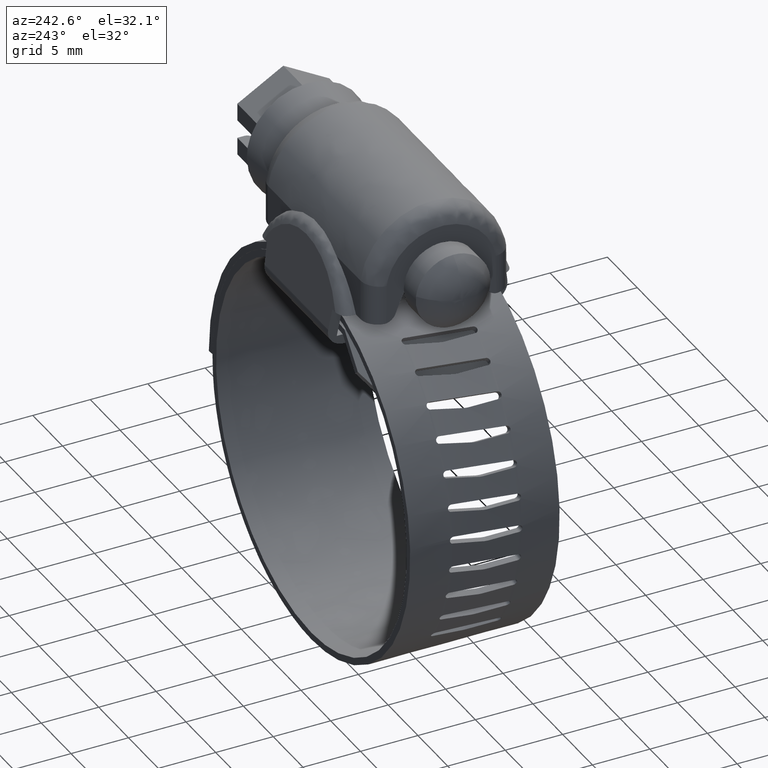
[diagram: clean part render]
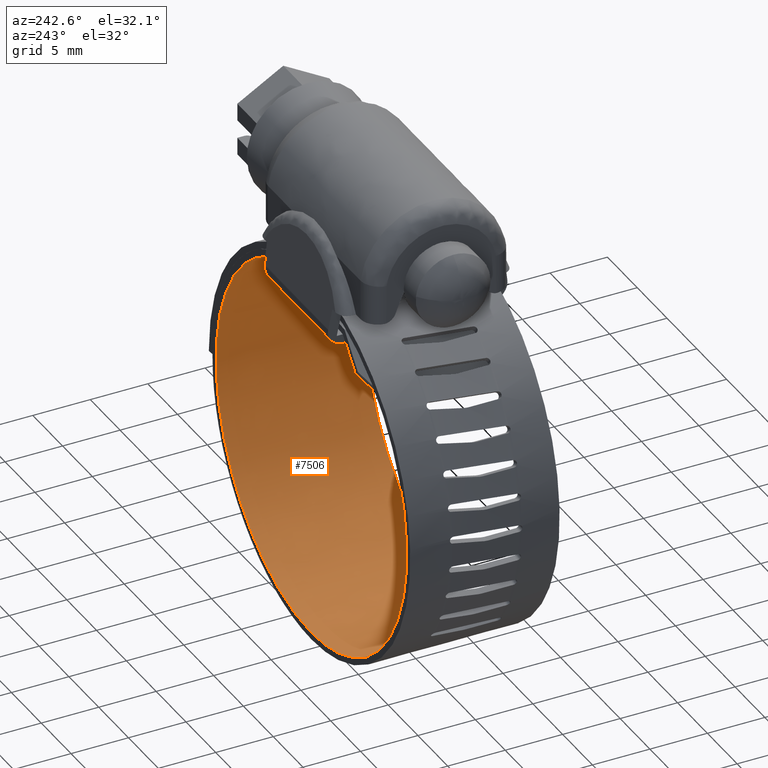
[diagram: same view with one face highlighted and labeled with its STEP entity id]
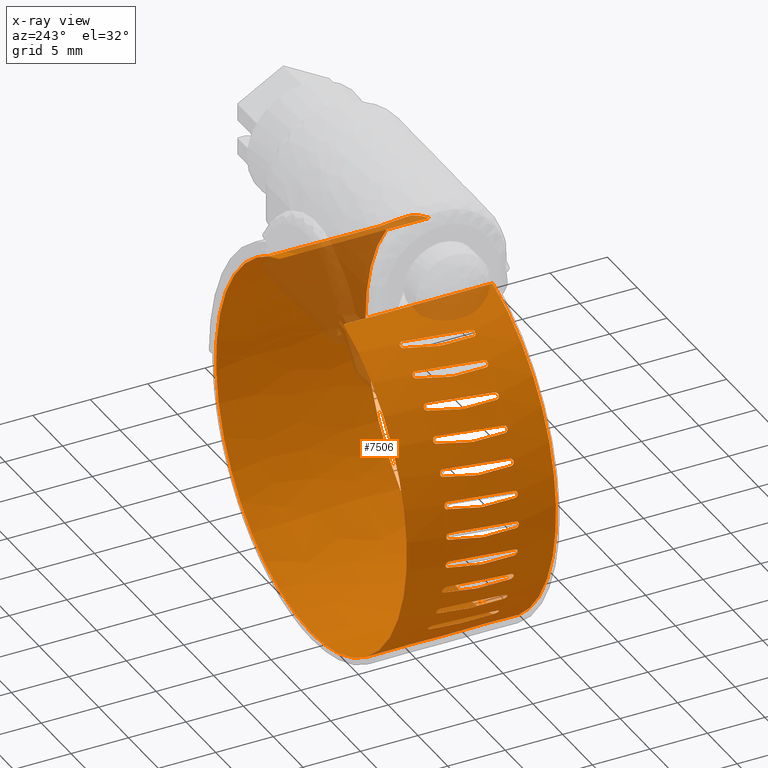
[diagram: x-ray of the same camera — body ghosted, the highlighted face saturated]
A machine part, auxiliary view. The second image highlights one B-rep face of the part: STEP entity #7506.
The next image is the same camera in x-ray: the body ghosted, the highlighted face saturated — about 10% of this face is hidden behind the body in this view.
In plain terms, the highlighted face is a freeform B-spline surface patch.
Its self-contained STEP definition (entity closure, byte-faithful):
#3767=CARTESIAN_POINT('',(-12.421257140041160,-0.263617999999994,-13.861255131179741));
#3768=VERTEX_POINT('',#3767);
#3783=CARTESIAN_POINT('',(-12.421257140040900,-2.957435000000000,-13.861255131179560));
#3784=VERTEX_POINT('',#3783);
#3790=CARTESIAN_POINT('',(-12.421257140041160,-0.263617999999994,-13.861255131179741));
#3791=CARTESIAN_POINT('',(-12.421257140040900,-2.957435000000000,-13.861255131179560));
#3792=QUASI_UNIFORM_CURVE('',1,(#3790,#3791),.UNSPECIFIED.,.F.,.U.);
#3793=EDGE_CURVE('',#3768,#3784,#3792,.T.);
#3812=CARTESIAN_POINT('',(-12.441516018293679,0.045397000000008,-13.836252440497780));
#3813=VERTEX_POINT('',#3812);
#3829=CARTESIAN_POINT('',(-12.441516018293679,0.045397000000008,-13.836252440497780));
#3830=CARTESIAN_POINT('',(-12.428041456751600,-0.056119536203311,-13.852892478841540));
#3831=CARTESIAN_POINT('',(-12.421241940093070,-0.159868481609939,-13.861284164799351));
#3832=CARTESIAN_POINT('',(-12.421257140041160,-0.263617999999994,-13.861255131179741));
#3833=B_SPLINE_CURVE_WITH_KNOTS('',3,(#3829,#3830,#3831,#3832),.UNSPECIFIED.,.F.,.U.,(4,4),(8.580454E-010,0.311248991106511),.UNSPECIFIED.);
#3834=EDGE_CURVE('',#3813,#3768,#3833,.T.);
#3844=CARTESIAN_POINT('',(-12.790654025236160,2.742565000000000,-13.388448679015561));
#3845=VERTEX_POINT('',#3844);
#3859=CARTESIAN_POINT('',(-12.790654025236160,2.742565000000000,-13.388448679015561));
#3860=CARTESIAN_POINT('',(-12.441516018293679,0.045397000000008,-13.836252440497780));
#3861=QUASI_UNIFORM_CURVE('',1,(#3859,#3860),.UNSPECIFIED.,.F.,.U.);
#3862=EDGE_CURVE('',#3845,#3813,#3861,.T.);
#3885=CARTESIAN_POINT('',(-13.138547919479461,2.680099000000000,-12.907186043857839));
#3886=VERTEX_POINT('',#3885);
#3918=CARTESIAN_POINT('',(-12.987110637873570,3.040911615838412,-13.121317398547481));
#3919=VERTEX_POINT('',#3918);
#3920=CARTESIAN_POINT('',(-12.987110637873570,3.040911615838412,-13.121317398547481));
#3921=CARTESIAN_POINT('',(-12.967295588504030,3.044494941789600,-13.148771461641770));
#3922=CARTESIAN_POINT('',(-12.929980919467130,3.040295916093172,-13.200305537164180));
#3923=CARTESIAN_POINT('',(-12.882221697610600,3.007956506036872,-13.265855379560120));
#3924=CARTESIAN_POINT('',(-12.839717079431590,2.954351251551765,-13.323816844641581));
#3925=CARTESIAN_POINT('',(-12.802386786544970,2.868203937917546,-13.374129960478101));
#3926=CARTESIAN_POINT('',(-12.790948891268480,2.787096230412511,-13.388716163299380));
#3927=CARTESIAN_POINT('',(-12.790654025236160,2.742565000000000,-13.388448679015561));
#3928=B_SPLINE_CURVE_WITH_KNOTS('',3,(#3920,#3921,#3922,#3923,#3924,#3925,#3926,#3927),.UNSPECIFIED.,.F.,.U.,(4,1,1,1,1,4),(0.000000125961019,0.102134200548676,0.188565528198858,0.259249423177564,0.369258284121241,0.502820025976260),.UNSPECIFIED.);
#3929=EDGE_CURVE('',#3919,#3845,#3928,.T.);
#3931=CARTESIAN_POINT('',(-13.138547919479461,2.680099000000000,-12.907186043857839));
#3932=CARTESIAN_POINT('',(-13.145719788114800,2.733906281616872,-12.898099450683411));
#3933=CARTESIAN_POINT('',(-13.142639172165641,2.826050683589269,-12.903716677137581));
#3934=CARTESIAN_POINT('',(-13.104582363790330,2.944310027345947,-12.957939029974410));
#3935=CARTESIAN_POINT('',(-13.051872104937720,3.015738737691740,-13.031665535386081));
#3936=CARTESIAN_POINT('',(-13.006964047387140,3.037359068344431,-13.093895474158160));
#3937=CARTESIAN_POINT('',(-12.987110637873570,3.040911615838412,-13.121317398547481));
#3938=B_SPLINE_CURVE_WITH_KNOTS('',3,(#3931,#3932,#3933,#3934,#3935,#3936,#3937),.UNSPECIFIED.,.F.,.U.,(4,1,1,1,4),(0.000000130373827,0.164990962050330,0.267118252018582,0.400686209528643,0.502820351807106),.UNSPECIFIED.);
#3939=EDGE_CURVE('',#3886,#3919,#3938,.T.);
#3949=CARTESIAN_POINT('',(-12.790654025236600,-2.957435000000000,-13.388448679015800));
#3950=VERTEX_POINT('',#3949);
#3964=CARTESIAN_POINT('',(-12.790654025236600,-2.957435000000000,-13.388448679015800));
#3965=CARTESIAN_POINT('',(-13.138547919479461,2.680099000000000,-12.907186043857839));
#3966=QUASI_UNIFORM_CURVE('',1,(#3964,#3965),.UNSPECIFIED.,.F.,.U.);
#3967=EDGE_CURVE('',#3950,#3886,#3966,.T.);
#4014=CARTESIAN_POINT('',(-12.608171397373461,-3.257434998474064,-13.626584450333660));
#4015=VERTEX_POINT('',#4014);
#4016=CARTESIAN_POINT('',(-12.608171397373461,-3.257434998474064,-13.626584450333660));
#4017=CARTESIAN_POINT('',(-12.635379467060901,-3.257501454226728,-13.591760721307070));
#4018=CARTESIAN_POINT('',(-12.686578047384280,-3.238655550553745,-13.525942525240239));
#4019=CARTESIAN_POINT('',(-12.745449024133571,-3.167132896934120,-13.449501902534079));
#4020=CARTESIAN_POINT('',(-12.782457536639139,-3.070304806762569,-13.400658584907340));
#4021=CARTESIAN_POINT('',(-12.790969954630450,-2.996710563044879,-13.388642430032389));
#4022=CARTESIAN_POINT('',(-12.790654025236600,-2.957435000000000,-13.388448679015800));
#4023=B_SPLINE_CURVE_WITH_KNOTS('',3,(#4016,#4017,#4018,#4019,#4020,#4021,#4022),.UNSPECIFIED.,.F.,.U.,(4,1,1,1,4),(0.000000050925734,0.132552166590771,0.250374794730847,0.353472051875724,0.471296052211463),.UNSPECIFIED.);
#4024=EDGE_CURVE('',#4015,#3950,#4023,.T.);
#4026=CARTESIAN_POINT('',(-12.421257140040900,-2.957435000000000,-13.861255131179560));
#4027=CARTESIAN_POINT('',(-12.421500595299040,-2.991796010587092,-13.861466801809620));
#4028=CARTESIAN_POINT('',(-12.429917262170740,-3.065419646400608,-13.851815163783940));
#4029=CARTESIAN_POINT('',(-12.467051419101880,-3.164160150270502,-13.805789315967189));
#4030=CARTESIAN_POINT('',(-12.529492022313420,-3.238653169920278,-13.727003432309569));
#4031=CARTESIAN_POINT('',(-12.580963591620151,-3.257502527140019,-13.661409882075020));
#4032=CARTESIAN_POINT('',(-12.608171397373461,-3.257434998474064,-13.626584450333660));
#4033=B_SPLINE_CURVE_WITH_KNOTS('',3,(#4026,#4027,#4028,#4029,#4030,#4031,#4032),.UNSPECIFIED.,.F.,.U.,(4,1,1,1,4),(0.000000062962225,0.103095681882633,0.220920767380017,0.338743073065289,0.471294843095182),.UNSPECIFIED.);
#4034=EDGE_CURVE('',#3784,#4015,#4033,.T.);
#4044=CARTESIAN_POINT('',(-13.915454284109339,-0.263617999999994,-11.672843170968340));
#4045=VERTEX_POINT('',#4044);
#4060=CARTESIAN_POINT('',(-13.915454284109160,-2.957435000000000,-11.672843170968299));
#4061=VERTEX_POINT('',#4060);
#4067=CARTESIAN_POINT('',(-13.915454284109339,-0.263617999999994,-11.672843170968340));
#4068=CARTESIAN_POINT('',(-13.915454284109160,-2.957435000000000,-11.672843170968299));
#4069=QUASI_UNIFORM_CURVE('',1,(#4067,#4068),.UNSPECIFIED.,.F.,.U.);
#4070=EDGE_CURVE('',#4045,#4061,#4069,.T.);
#4089=CARTESIAN_POINT('',(-13.931308689796101,0.045397000000008,-11.644839697796179));
#4090=VERTEX_POINT('',#4089);
#4106=CARTESIAN_POINT('',(-13.931308689796101,0.045397000000008,-11.644839697796179));
#4107=CARTESIAN_POINT('',(-13.920766825063250,-0.056119701401696,-11.663472814022681));
#4108=CARTESIAN_POINT('',(-13.915442630867959,-0.159868070442012,-11.672876886376560));
#4109=CARTESIAN_POINT('',(-13.915454284109339,-0.263617999999994,-11.672843170968340));
#4110=B_SPLINE_CURVE_WITH_KNOTS('',3,(#4106,#4107,#4108,#4109),.UNSPECIFIED.,.F.,.U.,(4,4),(8.580404E-010,0.311248991106508),.UNSPECIFIED.);
#4111=EDGE_CURVE('',#4090,#4045,#4110,.T.);
#4121=CARTESIAN_POINT('',(-14.201749540264879,2.742565000000000,-11.145552903371200));
#4122=VERTEX_POINT('',#4121);
#4136=CARTESIAN_POINT('',(-14.201749540264879,2.742565000000000,-11.145552903371200));
#4137=CARTESIAN_POINT('',(-13.931308689796101,0.045397000000008,-11.644839697796179));
#4138=QUASI_UNIFORM_CURVE('',1,(#4136,#4137),.UNSPECIFIED.,.F.,.U.);
#4139=EDGE_CURVE('',#4122,#4090,#4138,.T.);
#4162=CARTESIAN_POINT('',(-14.465441033296640,2.680099000000000,-10.613471441418859));
#4163=VERTEX_POINT('',#4162);
#4196=CARTESIAN_POINT('',(-14.351422490343939,3.040911615838410,-10.849660474154341));
#4197=VERTEX_POINT('',#4196);
#4198=CARTESIAN_POINT('',(-14.351422490343939,3.040911615838410,-10.849660474154341));
#4199=CARTESIAN_POINT('',(-14.331790119982090,3.045634024716117,-10.889349438935710));
#4200=CARTESIAN_POINT('',(-14.292641367511740,3.035136412306088,-10.968094554644919));
#4201=CARTESIAN_POINT('',(-14.244455624931319,2.969456247065741,-11.063961682457441));
#4202=CARTESIAN_POINT('',(-14.210956477104739,2.868212077480277,-11.129497576728420));
#4203=CARTESIAN_POINT('',(-14.202086245292620,2.787090027747975,-11.145764428593250));
#4204=CARTESIAN_POINT('',(-14.201749540264879,2.742565000000000,-11.145552903371200));
#4205=B_SPLINE_CURVE_WITH_KNOTS('',3,(#4198,#4199,#4200,#4201,#4202,#4203,#4204),.UNSPECIFIED.,.F.,.U.,(4,1,1,1,4),(0.000000125960348,0.133561864326121,0.259249423176971,0.369258284120680,0.502820025975865),.UNSPECIFIED.);
#4206=EDGE_CURVE('',#4197,#4122,#4205,.T.);
#4208=CARTESIAN_POINT('',(-14.465441033296640,2.680099000000000,-10.613471441418859));
#4209=CARTESIAN_POINT('',(-14.470469076577061,2.728771363721291,-10.604321777262850));
#4210=CARTESIAN_POINT('',(-14.469562872425159,2.812391911607537,-10.607781821289720));
#4211=CARTESIAN_POINT('',(-14.449944561629200,2.908083055366659,-10.649079857216170));
#4212=CARTESIAN_POINT('',(-14.424131146025401,2.975491471024398,-10.702272390415720));
#4213=CARTESIAN_POINT('',(-14.391465590204611,3.022266361825070,-10.768829645884050));
#4214=CARTESIAN_POINT('',(-14.364162270936751,3.037904828290303,-10.824001345897370));
#4215=CARTESIAN_POINT('',(-14.351422490343939,3.040911615838410,-10.849660474154341));
#4216=B_SPLINE_CURVE_WITH_KNOTS('',3,(#4208,#4209,#4210,#4211,#4212,#4213,#4214,#4215),.UNSPECIFIED.,.F.,.U.,(4,1,1,1,1,4),(0.000000130374763,0.149276098812867,0.243570888079719,0.314254838760863,0.416401072766733,0.502820351807302),.UNSPECIFIED.);
#4217=EDGE_CURVE('',#4163,#4197,#4216,.T.);
#4227=CARTESIAN_POINT('',(-14.201749540265100,-2.957435000000000,-11.145552903371160));
#4228=VERTEX_POINT('',#4227);
#4242=CARTESIAN_POINT('',(-14.201749540265100,-2.957435000000000,-11.145552903371160));
#4243=CARTESIAN_POINT('',(-14.465441033296640,2.680099000000000,-10.613471441418859));
#4244=QUASI_UNIFORM_CURVE('',1,(#4242,#4243),.UNSPECIFIED.,.F.,.U.);
#4245=EDGE_CURVE('',#4228,#4163,#4244,.T.);
#4292=CARTESIAN_POINT('',(-14.061073290798340,-3.257434998474064,-11.410541106674261));
#4293=VERTEX_POINT('',#4292);
#4294=CARTESIAN_POINT('',(-14.061073290798340,-3.257434998474064,-11.410541106674261));
#4295=CARTESIAN_POINT('',(-14.082160603223700,-3.257501469791384,-11.371704414765340));
#4296=CARTESIAN_POINT('',(-14.121794017975329,-3.238655508824571,-11.298338435977451));
#4297=CARTESIAN_POINT('',(-14.167241128314350,-3.167133000866325,-11.213229905861400));
#4298=CARTESIAN_POINT('',(-14.195680685322939,-3.070304813786832,-11.158948153954050));
#4299=CARTESIAN_POINT('',(-14.202093112124540,-2.996710572923027,-11.145691859343660));
#4300=CARTESIAN_POINT('',(-14.201749540265100,-2.957435000000000,-11.145552903371160));
#4301=B_SPLINE_CURVE_WITH_KNOTS('',3,(#4294,#4295,#4296,#4297,#4298,#4299,#4300),.UNSPECIFIED.,.F.,.U.,(4,1,1,1,4),(0.000000050925617,0.132552166590880,0.250374794731234,0.353472051876347,0.471296052212319),.UNSPECIFIED.);
#4302=EDGE_CURVE('',#4293,#4228,#4301,.T.);
#4304=CARTESIAN_POINT('',(-13.915454284109160,-2.957435000000000,-11.672843170968299));
#4305=CARTESIAN_POINT('',(-13.915727759457919,-2.991796371490323,-11.673014668147101));
#4306=CARTESIAN_POINT('',(-13.922439830210800,-3.065419073378201,-11.662099204509200));
#4307=CARTESIAN_POINT('',(-13.951464749781170,-3.164160469484326,-11.610582149650300));
#4308=CARTESIAN_POINT('',(-14.000047514335330,-3.238653067498773,-11.522567553887519));
#4309=CARTESIAN_POINT('',(-14.039986310362060,-3.257502614184774,-11.449379821983380));
#4310=CARTESIAN_POINT('',(-14.061073290798340,-3.257434998474064,-11.410541106674261));
#4311=B_SPLINE_CURVE_WITH_KNOTS('',3,(#4304,#4305,#4306,#4307,#4308,#4309,#4310),.UNSPECIFIED.,.F.,.U.,(4,1,1,1,4),(0.000000062962061,0.103095681882347,0.220920767379619,0.338743073064758,0.471294843094477),.UNSPECIFIED.);
#4312=EDGE_CURVE('',#4061,#4293,#4311,.T.);
#4322=CARTESIAN_POINT('',(-15.027967258492099,-0.263617999999994,-9.267830303067710));
#4323=VERTEX_POINT('',#4322);
#4338=CARTESIAN_POINT('',(-15.027967258492000,-2.957435000000000,-9.267830303067710));
#4339=VERTEX_POINT('',#4338);
#4345=CARTESIAN_POINT('',(-15.027967258492099,-0.263617999999994,-9.267830303067710));
#4346=CARTESIAN_POINT('',(-15.027967258492000,-2.957435000000000,-9.267830303067710));
#4347=QUASI_UNIFORM_CURVE('',1,(#4345,#4346),.UNSPECIFIED.,.F.,.U.);
#4348=EDGE_CURVE('',#4323,#4339,#4347,.T.);
#4367=CARTESIAN_POINT('',(-15.038982324339250,0.045397000000008,-9.237594148984019));
#4368=VERTEX_POINT('',#4367);
#4384=CARTESIAN_POINT('',(-15.038982324339250,0.045397000000008,-9.237594148984019));
#4385=CARTESIAN_POINT('',(-15.031659340197571,-0.056119555928969,-9.257714509284496));
#4386=CARTESIAN_POINT('',(-15.027962340933930,-0.159868415911031,-9.267862698429688));
#4387=CARTESIAN_POINT('',(-15.027967258492099,-0.263617999999994,-9.267830303067710));
#4388=B_SPLINE_CURVE_WITH_KNOTS('',3,(#4384,#4385,#4386,#4387),.UNSPECIFIED.,.F.,.U.,(4,4),(8.580439E-010,0.311248991106521),.UNSPECIFIED.);
#4389=EDGE_CURVE('',#4368,#4323,#4388,.T.);
#4399=CARTESIAN_POINT('',(-15.223308151166000,2.742565000000000,-8.700519157708090));
#4400=VERTEX_POINT('',#4399);
#4414=CARTESIAN_POINT('',(-15.223308151166000,2.742565000000000,-8.700519157708090));
#4415=CARTESIAN_POINT('',(-15.038982324339250,0.045397000000008,-9.237594148984019));
#4416=QUASI_UNIFORM_CURVE('',1,(#4414,#4415),.UNSPECIFIED.,.F.,.U.);
#4417=EDGE_CURVE('',#4400,#4368,#4416,.T.);
#4440=CARTESIAN_POINT('',(-15.395564502573350,2.680099000000000,-8.132213223328989));
#4441=VERTEX_POINT('',#4440);
#4473=CARTESIAN_POINT('',(-15.322092089734330,3.040911615838410,-8.383981553095010));
#4474=VERTEX_POINT('',#4473);
#4475=CARTESIAN_POINT('',(-15.322092089734330,3.040911615838410,-8.383981553095010));
#4476=CARTESIAN_POINT('',(-15.307768988261270,3.046222418797415,-8.431364455157771));
#4477=CARTESIAN_POINT('',(-15.285972118839080,3.035219585878911,-8.502887455997445));
#4478=CARTESIAN_POINT('',(-15.258815133472689,2.983679207117034,-8.590840750650260));
#4479=CARTESIAN_POINT('',(-15.242008248124179,2.927466246171848,-8.644528851871661));
#4480=CARTESIAN_POINT('',(-15.227829460548129,2.844657654471157,-8.688738524183973));
#4481=CARTESIAN_POINT('',(-15.223636039240150,2.781853497594617,-8.700640853089629));
#4482=CARTESIAN_POINT('',(-15.223308151166000,2.742565000000000,-8.700519157708090));
#4483=B_SPLINE_CURVE_WITH_KNOTS('',3,(#4475,#4476,#4477,#4478,#4479,#4480,#4481,#4482),.UNSPECIFIED.,.F.,.U.,(4,1,1,1,1,4),(0.000000125960467,0.149275995941640,0.219991534248486,0.314254641026083,0.384971814469807,0.502820025975914),.UNSPECIFIED.);
#4484=EDGE_CURVE('',#4474,#4400,#4483,.T.);
#4486=CARTESIAN_POINT('',(-15.395564502573350,2.680099000000000,-8.132213223328989));
#4487=CARTESIAN_POINT('',(-15.397907013887981,2.713397706434883,-8.125527618287027));
#4488=CARTESIAN_POINT('',(-15.399368293967941,2.787741702879185,-8.122961148010166));
#4489=CARTESIAN_POINT('',(-15.390197937965191,2.888838743092922,-8.156063909362548));
#4490=CARTESIAN_POINT('',(-15.373286561876260,2.962987305657893,-8.213747705393415));
#4491=CARTESIAN_POINT('',(-15.351130978739651,3.017766944041390,-8.288050780938265));
#4492=CARTESIAN_POINT('',(-15.333455832193380,3.036843847912046,-8.346590510382658));
#4493=CARTESIAN_POINT('',(-15.322092089734330,3.040911615838410,-8.383981553095010));
#4494=B_SPLINE_CURVE_WITH_KNOTS('',3,(#4486,#4487,#4488,#4489,#4490,#4491,#4492,#4493),.UNSPECIFIED.,.F.,.U.,(4,1,1,1,1,4),(0.000000130374108,0.102134272654018,0.219991663356365,0.314254838760689,0.384972066562539,0.502820351807282),.UNSPECIFIED.);
#4495=EDGE_CURVE('',#4441,#4474,#4494,.T.);
#4505=CARTESIAN_POINT('',(-15.223308151166149,-2.957435000000000,-8.700519157708031));
#4506=VERTEX_POINT('',#4505);
#4520=CARTESIAN_POINT('',(-15.223308151166149,-2.957435000000000,-8.700519157708031));
#4521=CARTESIAN_POINT('',(-15.395564502573350,2.680099000000000,-8.132213223328989));
#4522=QUASI_UNIFORM_CURVE('',1,(#4520,#4521),.UNSPECIFIED.,.F.,.U.);
#4523=EDGE_CURVE('',#4506,#4441,#4522,.T.);
#4570=CARTESIAN_POINT('',(-15.128296860376000,-3.257434998474064,-8.985091485378170));
#4571=VERTEX_POINT('',#4570);
#4572=CARTESIAN_POINT('',(-15.128296860376000,-3.257434998474064,-8.985091485378170));
#4573=CARTESIAN_POINT('',(-15.142684544864441,-3.257495568194524,-8.943308359988951));
#4574=CARTESIAN_POINT('',(-15.169666712056260,-3.238662705893975,-8.864404101405571));
#4575=CARTESIAN_POINT('',(-15.200442584553780,-3.167130989989865,-8.772964482751387));
#4576=CARTESIAN_POINT('',(-15.219533602609520,-3.070304128133187,-8.714731686995513));
#4577=CARTESIAN_POINT('',(-15.223669825307461,-2.996711292871877,-8.700599872052992));
#4578=CARTESIAN_POINT('',(-15.223308151166149,-2.957435000000000,-8.700519157708031));
#4579=B_SPLINE_CURVE_WITH_KNOTS('',3,(#4572,#4573,#4574,#4575,#4576,#4577,#4578),.UNSPECIFIED.,.F.,.U.,(4,1,1,1,4),(0.000000050925872,0.132552166590862,0.250374794731001,0.353472051875911,0.471296052211694),.UNSPECIFIED.);
#4580=EDGE_CURVE('',#4571,#4506,#4579,.T.);
#4582=CARTESIAN_POINT('',(-15.027967258492000,-2.957435000000000,-9.267830303067710));
#4583=CARTESIAN_POINT('',(-15.028335575061510,-3.001626655328994,-9.268033280715228));
#4584=CARTESIAN_POINT('',(-15.034408198717131,-3.075187268789671,-9.252515525090463));
#4585=CARTESIAN_POINT('',(-15.055888040646851,-3.170109508668157,-9.192867137989735));
#4586=CARTESIAN_POINT('',(-15.086593823127609,-3.238657092547815,-9.105665127417327));
#4587=CARTESIAN_POINT('',(-15.113909954880590,-3.257501699512373,-9.026876013792389));
#4588=CARTESIAN_POINT('',(-15.128296860376000,-3.257434998474064,-8.985091485378170));
#4589=B_SPLINE_CURVE_WITH_KNOTS('',3,(#4582,#4583,#4584,#4585,#4586,#4587,#4588),.UNSPECIFIED.,.F.,.U.,(4,1,1,1,4),(0.000000062962274,0.132551833759819,0.220920767379981,0.338743073065209,0.471294843095033),.UNSPECIFIED.);
#4590=EDGE_CURVE('',#4339,#4571,#4589,.T.);
#4600=CARTESIAN_POINT('',(-15.728281170738100,-0.263617999999994,-6.712183137034780));
#4601=VERTEX_POINT('',#4600);
#4616=CARTESIAN_POINT('',(-15.728281170738050,-2.957435000000000,-6.712183137034780));
#4617=VERTEX_POINT('',#4616);
#4623=CARTESIAN_POINT('',(-15.728281170738100,-0.263617999999994,-6.712183137034780));
#4624=CARTESIAN_POINT('',(-15.728281170738050,-2.957435000000000,-6.712183137034780));
#4625=QUASI_UNIFORM_CURVE('',1,(#4623,#4624),.UNSPECIFIED.,.F.,.U.);
#4626=EDGE_CURVE('',#4601,#4617,#4625,.T.);
#4645=CARTESIAN_POINT('',(-15.734154766741151,0.045397000000008,-6.680543643369700));
#4646=VERTEX_POINT('',#4645);
#4662=CARTESIAN_POINT('',(-15.734154766741151,0.045397000000008,-6.680543643369700));
#4663=CARTESIAN_POINT('',(-15.730253126189440,-0.056119583619097,-6.701596187328144));
#4664=CARTESIAN_POINT('',(-15.728281584440539,-0.159868477144730,-6.712216348086397));
#4665=CARTESIAN_POINT('',(-15.728281170738100,-0.263617999999994,-6.712183137034780));
#4666=B_SPLINE_CURVE_WITH_KNOTS('',3,(#4662,#4663,#4664,#4665),.UNSPECIFIED.,.F.,.U.,(4,4),(8.580421E-010,0.311248991106514),.UNSPECIFIED.);
#4667=EDGE_CURVE('',#4646,#4601,#4666,.T.);
#4677=CARTESIAN_POINT('',(-15.827309734254399,2.742565000000000,-6.120411776112499));
#4678=VERTEX_POINT('',#4677);
#4692=CARTESIAN_POINT('',(-15.827309734254399,2.742565000000000,-6.120411776112499));
#4693=CARTESIAN_POINT('',(-15.734154766741151,0.045397000000008,-6.680543643369700));
#4694=QUASI_UNIFORM_CURVE('',1,(#4692,#4693),.UNSPECIFIED.,.F.,.U.);
#4695=EDGE_CURVE('',#4678,#4646,#4694,.T.);
#4718=CARTESIAN_POINT('',(-15.903406159554800,2.680099000000000,-5.531469317372101));
#4719=VERTEX_POINT('',#4718);
#4750=CARTESIAN_POINT('',(-15.872495136720961,3.040911615838411,-5.791911241779397));
#4751=VERTEX_POINT('',#4750);
#4752=CARTESIAN_POINT('',(-15.872495136720961,3.040911615838411,-5.791911241779397));
#4753=CARTESIAN_POINT('',(-15.868181286498180,3.044492700685666,-5.825493053202016));
#4754=CARTESIAN_POINT('',(-15.859978890850339,3.040293225736010,-5.888583682653219));
#4755=CARTESIAN_POINT('',(-15.847011981359350,3.001125226663166,-5.986069620341566));
#4756=CARTESIAN_POINT('',(-15.837252627142551,2.936694587718698,-6.057021229729485));
#4757=CARTESIAN_POINT('',(-15.829824794123549,2.844655473493444,-6.108045375059769));
#4758=CARTESIAN_POINT('',(-15.827653396690501,2.781852329920834,-6.120476170229168));
#4759=CARTESIAN_POINT('',(-15.827309734254399,2.742565000000000,-6.120411776112499));
#4760=B_SPLINE_CURVE_WITH_KNOTS('',3,(#4752,#4753,#4754,#4755,#4756,#4757,#4758,#4759),.UNSPECIFIED.,.F.,.U.,(4,1,1,1,1,4),(0.000000125960520,0.102134200548183,0.188565528198378,0.314254641026030,0.384971814469728,0.502820025975818),.UNSPECIFIED.);
#4761=EDGE_CURVE('',#4751,#4678,#4760,.T.);
#4763=CARTESIAN_POINT('',(-15.903406159554800,2.680099000000000,-5.531469317372101));
#4764=CARTESIAN_POINT('',(-15.904613112116390,2.713397629873827,-5.524488690228303));
#4765=CARTESIAN_POINT('',(-15.905630740551310,2.787741745911725,-5.521716407497317));
#4766=CARTESIAN_POINT('',(-15.902049695424720,2.888838720071086,-5.555878622479335));
#4767=CARTESIAN_POINT('',(-15.894890822359770,2.962987336169144,-5.615562496196447));
#4768=CARTESIAN_POINT('',(-15.885302622928180,3.017766914308094,-5.692503359646582));
#4769=CARTESIAN_POINT('',(-15.877531741928390,3.036843845960638,-5.753157346559592));
#4770=CARTESIAN_POINT('',(-15.872495136720961,3.040911615838411,-5.791911241779397));
#4771=B_SPLINE_CURVE_WITH_KNOTS('',3,(#4763,#4764,#4765,#4766,#4767,#4768,#4769,#4770),.UNSPECIFIED.,.F.,.U.,(4,1,1,1,1,4),(0.000000130374823,0.102134272654518,0.219991663356645,0.314254838760813,0.384972066562618,0.502820351807342),.UNSPECIFIED.);
#4772=EDGE_CURVE('',#4719,#4751,#4771,.T.);
#4782=CARTESIAN_POINT('',(-15.827309734254399,-2.957435000000000,-6.120411776112420));
#4783=VERTEX_POINT('',#4782);
#4797=CARTESIAN_POINT('',(-15.827309734254399,-2.957435000000000,-6.120411776112420));
#4798=CARTESIAN_POINT('',(-15.903406159554800,2.680099000000000,-5.531469317372101));
#4799=QUASI_UNIFORM_CURVE('',1,(#4797,#4798),.UNSPECIFIED.,.F.,.U.);
#4800=EDGE_CURVE('',#4783,#4719,#4799,.T.);
#4847=CARTESIAN_POINT('',(-15.780569447540589,-3.257434998474064,-6.416762751564414));
#4848=VERTEX_POINT('',#4847);
#4849=CARTESIAN_POINT('',(-15.780569447540589,-3.257434998474064,-6.416762751564414));
#4850=CARTESIAN_POINT('',(-15.787864306773590,-3.257501331945568,-6.373174160102722));
#4851=CARTESIAN_POINT('',(-15.798252548136031,-3.243073251884329,-6.310276864920812));
#4852=CARTESIAN_POINT('',(-15.811074756717570,-3.194879331135027,-6.230916626203414));
#4853=CARTESIAN_POINT('',(-15.819274511234040,-3.142252386856764,-6.178927257803611));
#4854=CARTESIAN_POINT('',(-15.826163219539341,-3.060485700336786,-6.133117057373236));
#4855=CARTESIAN_POINT('',(-15.827680706302219,-2.996713078779379,-6.120426196159468));
#4856=CARTESIAN_POINT('',(-15.827309734254399,-2.957435000000000,-6.120411776112420));
#4857=B_SPLINE_CURVE_WITH_KNOTS('',3,(#4849,#4850,#4851,#4852,#4853,#4854,#4855,#4856),.UNSPECIFIED.,.F.,.U.,(4,1,1,1,1,4),(0.000000050925524,0.132552166590719,0.191465755583888,0.279830369850954,0.353472051876021,0.471296052211914),.UNSPECIFIED.);
#4858=EDGE_CURVE('',#4848,#4783,#4857,.T.);
#4860=CARTESIAN_POINT('',(-15.728281170738050,-2.957435000000000,-6.712183137034780));
#4861=CARTESIAN_POINT('',(-15.728596126319401,-2.991796112071591,-6.712252981188391));
#4862=CARTESIAN_POINT('',(-15.731387457651911,-3.065419792005729,-6.699754967783913));
#4863=CARTESIAN_POINT('',(-15.742060067879430,-3.164157567581261,-6.641586939776216));
#4864=CARTESIAN_POINT('',(-15.759340157698061,-3.238660600484756,-6.542557472557656));
#4865=CARTESIAN_POINT('',(-15.773276287112161,-3.257496929361871,-6.460348478047204));
#4866=CARTESIAN_POINT('',(-15.780569447540589,-3.257434998474064,-6.416762751564414));
#4867=B_SPLINE_CURVE_WITH_KNOTS('',3,(#4860,#4861,#4862,#4863,#4864,#4865,#4866),.UNSPECIFIED.,.F.,.U.,(4,1,1,1,4),(0.000000062961856,0.103095681882262,0.220920767379671,0.338743073064961,0.471294843094814),.UNSPECIFIED.);
#4868=EDGE_CURVE('',#4617,#4848,#4867,.T.);
#4878=CARTESIAN_POINT('',(-8.964293798683688,-0.263617999999994,9.476978408300640));
#4879=VERTEX_POINT('',#4878);
#4894=CARTESIAN_POINT('',(-8.964293798683720,-2.957435000000000,9.476978408300530));
#4895=VERTEX_POINT('',#4894);
#4901=CARTESIAN_POINT('',(-8.964293798683688,-0.263617999999994,9.476978408300640));
#4902=CARTESIAN_POINT('',(-8.964293798683720,-2.957435000000000,9.476978408300530));
#4903=QUASI_UNIFORM_CURVE('',1,(#4901,#4902),.UNSPECIFIED.,.F.,.U.);
#4904=EDGE_CURVE('',#4879,#4895,#4903,.T.);
#4923=CARTESIAN_POINT('',(-8.937620573207139,0.045397000000008,9.494981067328279));
#4924=VERTEX_POINT('',#4923);
#4940=CARTESIAN_POINT('',(-8.937620573207139,0.045397000000008,9.494981067328279));
#4941=CARTESIAN_POINT('',(-8.955368783376542,-0.056119841057647,9.483010005661104));
#4942=CARTESIAN_POINT('',(-8.964326928927402,-0.159867995965407,9.476963853789060));
#4943=CARTESIAN_POINT('',(-8.964293798683688,-0.263617999999994,9.476978408300640));
#4944=B_SPLINE_CURVE_WITH_KNOTS('',3,(#4940,#4941,#4942,#4943),.UNSPECIFIED.,.F.,.U.,(4,4),(8.580560E-010,0.311248991106518),.UNSPECIFIED.);
#4945=EDGE_CURVE('',#4924,#4879,#4944,.T.);
#4955=CARTESIAN_POINT('',(-8.461091457916400,2.742565000000000,9.803761829309419));
#4956=VERTEX_POINT('',#4955);
#4970=CARTESIAN_POINT('',(-8.461091457916400,2.742565000000000,9.803761829309419));
#4971=CARTESIAN_POINT('',(-8.937620573207139,0.045397000000008,9.494981067328279));
#4972=QUASI_UNIFORM_CURVE('',1,(#4970,#4971),.UNSPECIFIED.,.F.,.U.);
#4973=EDGE_CURVE('',#4956,#4924,#4972,.T.);
#4996=CARTESIAN_POINT('',(-7.951339221632511,2.680099000000000,10.108387079829200));
#4997=VERTEX_POINT('',#4996);
#5030=CARTESIAN_POINT('',(-8.177854370628356,3.040911615838409,9.976188840063168));
#5031=VERTEX_POINT('',#5030);
#5032=CARTESIAN_POINT('',(-8.177854370628356,3.040911615838409,9.976188840063168));
#5033=CARTESIAN_POINT('',(-8.220364560464910,3.046221503967765,9.950828324011560));
#5034=CARTESIAN_POINT('',(-8.284490021609011,3.035220475855737,9.912375870362773));
#5035=CARTESIAN_POINT('',(-8.363260972644545,2.983678441878868,9.864747650165084));
#5036=CARTESIAN_POINT('',(-8.408084493533670,2.931214617494483,9.837405972453796));
#5037=CARTESIAN_POINT('',(-8.449296662832284,2.849872781068593,9.811924450755187));
#5038=CARTESIAN_POINT('',(-8.461336046958417,2.787099941606276,9.804076639515644));
#5039=CARTESIAN_POINT('',(-8.461091457916400,2.742565000000000,9.803761829309419));
#5040=B_SPLINE_CURVE_WITH_KNOTS('',3,(#5032,#5033,#5034,#5035,#5036,#5037,#5038,#5039),.UNSPECIFIED.,.F.,.U.,(4,1,1,1,1,4),(0.000000125960633,0.149275995941526,0.219991534248330,0.314254641025840,0.369258284120484,0.502820025975316),.UNSPECIFIED.);
#5041=EDGE_CURVE('',#5031,#4956,#5040,.T.);
#5043=CARTESIAN_POINT('',(-7.951339221632511,2.680099000000000,10.108387079829200));
#5044=CARTESIAN_POINT('',(-7.944485986283964,2.718523456575338,10.112889205290630));
#5045=CARTESIAN_POINT('',(-7.944142613306726,2.782577458303185,10.113747459198690));
#5046=CARTESIAN_POINT('',(-7.967355537415802,2.868188627612187,10.100695261647260));
#5047=CARTESIAN_POINT('',(-8.007927829922519,2.944776015025196,10.077138352512330));
#5048=CARTESIAN_POINT('',(-8.078642146932820,3.013032749014545,10.035416259748191));
#5049=CARTESIAN_POINT('',(-8.144328228074253,3.036836861613775,9.996257619450113));
#5050=CARTESIAN_POINT('',(-8.177854370628356,3.040911615838409,9.976188840063168));
#5051=B_SPLINE_CURVE_WITH_KNOTS('',3,(#5043,#5044,#5045,#5046,#5047,#5048,#5049,#5050),.UNSPECIFIED.,.F.,.U.,(4,1,1,1,1,4),(0.000000130376302,0.117848415621548,0.188565643417773,0.267118252019633,0.384972066562949,0.502820351807598),.UNSPECIFIED.);
#5052=EDGE_CURVE('',#4997,#5031,#5051,.T.);
#5062=CARTESIAN_POINT('',(-8.461091457916510,-2.957435000000000,9.803761829309750));
#5063=VERTEX_POINT('',#5062);
#5077=CARTESIAN_POINT('',(-8.461091457916510,-2.957435000000000,9.803761829309750));
#5078=CARTESIAN_POINT('',(-7.951339221632511,2.680099000000000,10.108387079829200));
#5079=QUASI_UNIFORM_CURVE('',1,(#5077,#5078),.UNSPECIFIED.,.F.,.U.);
#5080=EDGE_CURVE('',#5063,#4997,#5079,.T.);
#5127=CARTESIAN_POINT('',(-8.714225459700176,-3.257434998474064,9.642728502962372));
#5128=VERTEX_POINT('',#5127);
#5129=CARTESIAN_POINT('',(-8.714225459700176,-3.257434998474064,9.642728502962372));
#5130=CARTESIAN_POINT('',(-8.677159414793238,-3.257506571912537,9.666800274160435));
#5131=CARTESIAN_POINT('',(-8.623623653152029,-3.243068717907216,9.701405397942930));
#5132=CARTESIAN_POINT('',(-8.555957267789918,-3.194879542356987,9.744809736918356));
#5133=CARTESIAN_POINT('',(-8.511549507793436,-3.142252978449191,9.773060140658112));
#5134=CARTESIAN_POINT('',(-8.472285841019602,-3.060485469248381,9.797644153221969));
#5135=CARTESIAN_POINT('',(-8.461252592529318,-2.996713146276457,9.804096292956267));
#5136=CARTESIAN_POINT('',(-8.461091457916510,-2.957435000000000,9.803761829309750));
#5137=B_SPLINE_CURVE_WITH_KNOTS('',3,(#5129,#5130,#5131,#5132,#5133,#5134,#5135,#5136),.UNSPECIFIED.,.F.,.U.,(4,1,1,1,1,4),(0.000000050925852,0.132552166590943,0.191465755584068,0.279830369851085,0.353472051876132,0.471296052211998),.UNSPECIFIED.);
#5138=EDGE_CURVE('',#5128,#5063,#5137,.T.);
#5140=CARTESIAN_POINT('',(-8.964293798683720,-2.957435000000000,9.476978408300530));
#5141=CARTESIAN_POINT('',(-8.964486246266731,-2.991795604121333,9.477237561948343));
#5142=CARTESIAN_POINT('',(-8.954131121377168,-3.065419566216232,9.484785329601868));
#5143=CARTESIAN_POINT('',(-8.905049897585377,-3.164160247732432,9.517762909481164));
#5144=CARTESIAN_POINT('',(-8.821118944360679,-3.238653091948945,9.573101092226635));
#5145=CARTESIAN_POINT('',(-8.751289758361152,-3.257502555749323,9.618659421262835));
#5146=CARTESIAN_POINT('',(-8.714225459700176,-3.257434998474064,9.642728502962372));
#5147=B_SPLINE_CURVE_WITH_KNOTS('',3,(#5140,#5141,#5142,#5143,#5144,#5145,#5146),.UNSPECIFIED.,.F.,.U.,(4,1,1,1,4),(0.000000062962099,0.103095681882431,0.220920767379766,0.338743073064998,0.471294843094790),.UNSPECIFIED.);
#5148=EDGE_CURVE('',#4895,#5128,#5147,.T.);
#5158=CARTESIAN_POINT('',(-11.028726258404440,-0.263617999999994,7.815686551886249));
#5159=VERTEX_POINT('',#5158);
#5174=CARTESIAN_POINT('',(-11.028726258404459,-2.957435000000000,7.815686551886198));
#5175=VERTEX_POINT('',#5174);
#5181=CARTESIAN_POINT('',(-11.028726258404440,-0.263617999999994,7.815686551886249));
#5182=CARTESIAN_POINT('',(-11.028726258404459,-2.957435000000000,7.815686551886198));
#5183=QUASI_UNIFORM_CURVE('',1,(#5181,#5182),.UNSPECIFIED.,.F.,.U.);
#5184=EDGE_CURVE('',#5159,#5175,#5183,.T.);
#5203=CARTESIAN_POINT('',(-11.005390135942120,0.045397000000008,7.837844667280150));
#5204=VERTEX_POINT('',#5203);
#5220=CARTESIAN_POINT('',(-11.005390135942120,0.045397000000008,7.837844667280150));
#5221=CARTESIAN_POINT('',(-11.020919140522350,-0.056119789861974,7.823108486193346));
#5222=CARTESIAN_POINT('',(-11.028756529628049,-0.159868009646504,7.815666731256344));
#5223=CARTESIAN_POINT('',(-11.028726258404440,-0.263617999999994,7.815686551886249));
#5224=B_SPLINE_CURVE_WITH_KNOTS('',3,(#5220,#5221,#5222,#5223),.UNSPECIFIED.,.F.,.U.,(4,4),(8.580459E-010,0.311248991106520),.UNSPECIFIED.);
#5225=EDGE_CURVE('',#5204,#5159,#5224,.T.);
#5235=CARTESIAN_POINT('',(-10.586359856318280,2.742565000000000,8.221040676455241));
#5236=VERTEX_POINT('',#5235);
#5250=CARTESIAN_POINT('',(-10.586359856318280,2.742565000000000,8.221040676455241));
#5251=CARTESIAN_POINT('',(-11.005390135942120,0.045397000000008,7.837844667280150));
#5252=QUASI_UNIFORM_CURVE('',1,(#5250,#5251),.UNSPECIFIED.,.F.,.U.);
#5253=EDGE_CURVE('',#5236,#5204,#5252,.T.);
#5276=CARTESIAN_POINT('',(-10.133876233603161,2.680099000000000,8.605621561088571));
#5277=VERTEX_POINT('',#5276);
#5310=CARTESIAN_POINT('',(-10.335465860615420,3.040911615838408,8.437850557625811));
#5311=VERTEX_POINT('',#5310);
#5312=CARTESIAN_POINT('',(-10.335465860615420,3.040911615838408,8.437850557625811));
#5313=CARTESIAN_POINT('',(-10.361279059404451,3.044488799074345,8.415943826745311));
#5314=CARTESIAN_POINT('',(-10.417810097863519,3.039620686985719,8.367819825157305));
#5315=CARTESIAN_POINT('',(-10.491441547510940,2.994961966512909,8.304691595936514));
#5316=CARTESIAN_POINT('',(-10.542467979118721,2.927461048044437,8.260517553034305));
#5317=CARTESIAN_POINT('',(-10.577359420780761,2.844657598312915,8.229884296268541));
#5318=CARTESIAN_POINT('',(-10.586602061205591,2.781853560406320,8.221292965199163));
#5319=CARTESIAN_POINT('',(-10.586359856318280,2.742565000000000,8.221040676455241));
#5320=B_SPLINE_CURVE_WITH_KNOTS('',3,(#5312,#5313,#5314,#5315,#5316,#5317,#5318,#5319),.UNSPECIFIED.,.F.,.U.,(4,1,1,1,1,4),(0.000000125961085,0.102134200548428,0.219991534248382,0.314254641025830,0.384971814469455,0.502820025975385),.UNSPECIFIED.);
#5321=EDGE_CURVE('',#5311,#5236,#5320,.T.);
#5323=CARTESIAN_POINT('',(-10.133876233603161,2.680099000000000,8.605621561088571));
#5324=CARTESIAN_POINT('',(-10.128678854638419,2.713398015189124,8.610435966953132));
#5325=CARTESIAN_POINT('',(-10.126910073116081,2.787739903057555,8.612797575491110));
#5326=CARTESIAN_POINT('',(-10.153605648709620,2.888842080274543,8.591192413797439));
#5327=CARTESIAN_POINT('',(-10.199768081767290,2.962983693500412,8.552676834765107));
#5328=CARTESIAN_POINT('',(-10.259068588309891,3.017769509565995,8.502735193068038));
#5329=CARTESIAN_POINT('',(-10.305708009212999,3.036842976780069,8.463180829263649));
#5330=CARTESIAN_POINT('',(-10.335465860615420,3.040911615838408,8.437850557625811));
#5331=B_SPLINE_CURVE_WITH_KNOTS('',3,(#5323,#5324,#5325,#5326,#5327,#5328,#5329,#5330),.UNSPECIFIED.,.F.,.U.,(4,1,1,1,1,4),(0.000000130375517,0.102134272655043,0.219991663356944,0.314254838761047,0.384972066562849,0.502820351807609),.UNSPECIFIED.);
#5332=EDGE_CURVE('',#5277,#5311,#5331,.T.);
#5342=CARTESIAN_POINT('',(-10.586359856318500,-2.957435000000000,8.221040676455681));
#5343=VERTEX_POINT('',#5342);
#5357=CARTESIAN_POINT('',(-10.586359856318500,-2.957435000000000,8.221040676455681));
#5358=CARTESIAN_POINT('',(-10.133876233603161,2.680099000000000,8.605621561088571));
#5359=QUASI_UNIFORM_CURVE('',1,(#5357,#5358),.UNSPECIFIED.,.F.,.U.);
#5360=EDGE_CURVE('',#5343,#5277,#5359,.T.);
#5407=CARTESIAN_POINT('',(-10.809444112559730,-3.257434998474064,8.020436664355447));
#5408=VERTEX_POINT('',#5407);
#5409=CARTESIAN_POINT('',(-10.809444112559730,-3.257434998474064,8.020436664355447));
#5410=CARTESIAN_POINT('',(-10.776863436204190,-3.257501373083431,8.050292197888370));
#5411=CARTESIAN_POINT('',(-10.715258797847961,-3.238656500618777,8.106502801669212));
#5412=CARTESIAN_POINT('',(-10.649659398299571,-3.173087283676147,8.165779744489914));
#5413=CARTESIAN_POINT('',(-10.600760036485390,-3.080067471627721,8.209404837769302));
#5414=CARTESIAN_POINT('',(-10.586600557837420,-3.006543288705572,8.221444615523376));
#5415=CARTESIAN_POINT('',(-10.586359856318500,-2.957435000000000,8.221040676455681));
#5416=B_SPLINE_CURVE_WITH_KNOTS('',3,(#5409,#5410,#5411,#5412,#5413,#5414,#5415),.UNSPECIFIED.,.F.,.U.,(4,1,1,1,4),(0.000000050925724,0.132552166590837,0.250374794731063,0.324015627058447,0.471296052211880),.UNSPECIFIED.);
#5417=EDGE_CURVE('',#5408,#5343,#5416,.T.);
#5419=CARTESIAN_POINT('',(-11.028726258404459,-2.957435000000000,7.815686551886198));
#5420=CARTESIAN_POINT('',(-11.028958844659950,-2.991795606718529,7.815910383573914));
#5421=CARTESIAN_POINT('',(-11.019991562335489,-3.065419848629893,7.825063650290951));
#5422=CARTESIAN_POINT('',(-10.977025495593070,-3.164157913079874,7.865690431017583));
#5423=CARTESIAN_POINT('',(-10.903381618058550,-3.238659843570650,7.934120039477818));
#5424=CARTESIAN_POINT('',(-10.842026718380490,-3.257497573867147,7.990581002714971));
#5425=CARTESIAN_POINT('',(-10.809444112559730,-3.257434998474064,8.020436664355447));
#5426=B_SPLINE_CURVE_WITH_KNOTS('',3,(#5419,#5420,#5421,#5422,#5423,#5424,#5425),.UNSPECIFIED.,.F.,.U.,(4,1,1,1,4),(0.000000062961772,0.103095681882203,0.220920767379627,0.338743073064930,0.471294843094807),.UNSPECIFIED.);
#5427=EDGE_CURVE('',#5175,#5408,#5426,.T.);
#5437=CARTESIAN_POINT('',(-12.790654025236380,-0.263617999999994,5.836448679015780));
#5438=VERTEX_POINT('',#5437);
#5453=CARTESIAN_POINT('',(-12.790654025236160,-2.957435000000000,5.836448679015630));
#5454=VERTEX_POINT('',#5453);
#5460=CARTESIAN_POINT('',(-12.790654025236380,-0.263617999999994,5.836448679015780));
#5461=CARTESIAN_POINT('',(-12.790654025236160,-2.957435000000000,5.836448679015630));
#5462=QUASI_UNIFORM_CURVE('',1,(#5460,#5461),.UNSPECIFIED.,.F.,.U.);
#5463=EDGE_CURVE('',#5438,#5454,#5462,.T.);
#5482=CARTESIAN_POINT('',(-12.771295087551920,0.045397000000008,5.862154480328321));
#5483=VERTEX_POINT('',#5482);
#5499=CARTESIAN_POINT('',(-12.771295087551920,0.045397000000008,5.862154480328321));
#5500=CARTESIAN_POINT('',(-12.784180740944270,-0.056119583619106,5.845054996629477));
#5501=CARTESIAN_POINT('',(-12.790678790485179,-0.159868477144731,5.836426546967888));
#5502=CARTESIAN_POINT('',(-12.790654025236380,-0.263617999999994,5.836448679015780));
#5503=B_SPLINE_CURVE_WITH_KNOTS('',3,(#5499,#5500,#5501,#5502),.UNSPECIFIED.,.F.,.U.,(4,4),(8.580381E-010,0.311248991106509),.UNSPECIFIED.);
#5504=EDGE_CURVE('',#5483,#5438,#5503,.T.);
#5514=CARTESIAN_POINT('',(-12.421257140040719,2.742565000000000,6.309255131179531));
#5515=VERTEX_POINT('',#5514);
#5529=CARTESIAN_POINT('',(-12.421257140040719,2.742565000000000,6.309255131179531));
#5530=CARTESIAN_POINT('',(-12.771295087551920,0.045397000000008,5.862154480328321));
#5531=QUASI_UNIFORM_CURVE('',1,(#5529,#5530),.UNSPECIFIED.,.F.,.U.);
#5532=EDGE_CURVE('',#5515,#5483,#5531,.T.);
#5555=CARTESIAN_POINT('',(-12.038453212293700,2.680099000000000,6.763243058939900));
#5556=VERTEX_POINT('',#5555);
#5589=CARTESIAN_POINT('',(-12.209587956380950,3.040911615838413,6.564501048564356));
#5590=VERTEX_POINT('',#5589);
#5591=CARTESIAN_POINT('',(-12.209587956380950,3.040911615838413,6.564501048564356));
#5592=CARTESIAN_POINT('',(-12.228070764713440,3.043933531610608,6.542613987669999));
#5593=CARTESIAN_POINT('',(-12.268951577205380,3.041440142081033,6.494077021084082));
#5594=CARTESIAN_POINT('',(-12.326564305846610,3.008372882488154,6.425267130744349));
#5595=CARTESIAN_POINT('',(-12.379253010737671,2.941660153731396,6.361835419566408));
#5596=CARTESIAN_POINT('',(-12.413833229189450,2.849925423542439,6.319543341056911));
#5597=CARTESIAN_POINT('',(-12.421486499170671,2.776607409530123,6.309452357839054));
#5598=CARTESIAN_POINT('',(-12.421257140040719,2.742565000000000,6.309255131179531));
#5599=B_SPLINE_CURVE_WITH_KNOTS('',3,(#5591,#5592,#5593,#5594,#5595,#5596,#5597,#5598),.UNSPECIFIED.,.F.,.U.,(4,1,1,1,1,4),(0.000000125960829,0.086419347197856,0.188565528198167,0.282828647288777,0.400685946810761,0.502820025975194),.UNSPECIFIED.);
#5600=EDGE_CURVE('',#5590,#5515,#5599,.T.);
#5602=CARTESIAN_POINT('',(-12.038453212293700,2.680099000000000,6.763243058939900));
#5603=CARTESIAN_POINT('',(-12.031379422317681,2.733891568092679,6.772390585064835));
#5604=CARTESIAN_POINT('',(-12.036327471206009,2.831515567900853,6.767827833654421));
#5605=CARTESIAN_POINT('',(-12.076582276083551,2.934710819787368,6.721327890513507));
#5606=CARTESIAN_POINT('',(-12.131944863012260,3.009474849495210,6.656464723369090));
#5607=CARTESIAN_POINT('',(-12.177690765496671,3.035812054200067,6.602387475313101));
#5608=CARTESIAN_POINT('',(-12.209587956380950,3.040911615838413,6.564501048564356));
#5609=B_SPLINE_CURVE_WITH_KNOTS('',3,(#5602,#5603,#5604,#5605,#5606,#5607,#5608),.UNSPECIFIED.,.F.,.U.,(4,1,1,1,4),(0.000000130375070,0.164990962051320,0.282828818818280,0.353544383371415,0.502820351807699),.UNSPECIFIED.);
#5610=EDGE_CURVE('',#5556,#5590,#5609,.T.);
#5620=CARTESIAN_POINT('',(-12.421257140041041,-2.957435000000000,6.309255131179970));
#5621=VERTEX_POINT('',#5620);
#5635=CARTESIAN_POINT('',(-12.421257140041041,-2.957435000000000,6.309255131179970));
#5636=CARTESIAN_POINT('',(-12.038453212293700,2.680099000000000,6.763243058939900));
#5637=QUASI_UNIFORM_CURVE('',1,(#5635,#5636),.UNSPECIFIED.,.F.,.U.);
#5638=EDGE_CURVE('',#5621,#5556,#5637,.T.);
#5685=CARTESIAN_POINT('',(-12.608172717978510,-3.257434998474064,6.074582760036281));
#5686=VERTEX_POINT('',#5685);
#5687=CARTESIAN_POINT('',(-12.608172717978510,-3.257434998474064,6.074582760036281));
#5688=CARTESIAN_POINT('',(-12.580964062683400,-3.257506098818735,6.109409333534281));
#5689=CARTESIAN_POINT('',(-12.535552691202851,-3.240851566115782,6.167279608943934));
#5690=CARTESIAN_POINT('',(-12.479214773521280,-3.180202801284064,6.238465243583444));
#5691=CARTESIAN_POINT('',(-12.435132752049640,-3.089887857525805,6.293512264201390));
#5692=CARTESIAN_POINT('',(-12.421560477293211,-3.006538988675526,6.309614675158365));
#5693=CARTESIAN_POINT('',(-12.421257140041041,-2.957435000000000,6.309255131179970));
#5694=B_SPLINE_CURVE_WITH_KNOTS('',3,(#5687,#5688,#5689,#5690,#5691,#5692,#5693),.UNSPECIFIED.,.F.,.U.,(4,1,1,1,4),(0.000000050925888,0.132552166591073,0.220921340149807,0.324015627058813,0.471296052212376),.UNSPECIFIED.);
#5695=EDGE_CURVE('',#5686,#5621,#5694,.T.);
#5697=CARTESIAN_POINT('',(-12.790654025236160,-2.957435000000000,5.836448679015630));
#5698=CARTESIAN_POINT('',(-12.790918169342319,-2.991793177464794,5.836633825982573));
#5699=CARTESIAN_POINT('',(-12.783589656926990,-3.065422538446196,5.847135185620495));
#5700=CARTESIAN_POINT('',(-12.747914360716530,-3.164158681949436,5.894301121693524));
#5701=CARTESIAN_POINT('',(-12.686574593886760,-3.238653786705253,5.973946918653786));
#5702=CARTESIAN_POINT('',(-12.635381515840400,-3.257502419503114,6.039758113688833));
#5703=CARTESIAN_POINT('',(-12.608172717978510,-3.257434998474064,6.074582760036281));
#5704=B_SPLINE_CURVE_WITH_KNOTS('',3,(#5697,#5698,#5699,#5700,#5701,#5702,#5703),.UNSPECIFIED.,.F.,.U.,(4,1,1,1,4),(0.000000062961996,0.103095681882292,0.220920767379554,0.338743073064714,0.471294843094444),.UNSPECIFIED.);
#5705=EDGE_CURVE('',#5454,#5686,#5704,.T.);
#5715=CARTESIAN_POINT('',(-14.201749540265100,-0.263617999999994,3.593552903371380));
#5716=VERTEX_POINT('',#5715);
#5731=CARTESIAN_POINT('',(-14.201749540264840,-2.957435000000000,3.593552903371220));
#5732=VERTEX_POINT('',#5731);
#5738=CARTESIAN_POINT('',(-14.201749540265100,-0.263617999999994,3.593552903371380));
#5739=CARTESIAN_POINT('',(-14.201749540264840,-2.957435000000000,3.593552903371220));
#5740=QUASI_UNIFORM_CURVE('',1,(#5738,#5739),.UNSPECIFIED.,.F.,.U.);
#5741=EDGE_CURVE('',#5716,#5732,#5740,.T.);
#5760=CARTESIAN_POINT('',(-14.186898779729139,0.045397000000008,3.622101311398740));
#5761=VERTEX_POINT('',#5760);
#5777=CARTESIAN_POINT('',(-14.186898779729139,0.045397000000008,3.622101311398740));
#5778=CARTESIAN_POINT('',(-14.196784113601060,-0.056119841057638,3.603112223587571));
#5779=CARTESIAN_POINT('',(-14.201771710877329,-0.159867995965400,3.593524304231401));
#5780=CARTESIAN_POINT('',(-14.201749540265100,-0.263617999999994,3.593552903371380));
#5781=B_SPLINE_CURVE_WITH_KNOTS('',3,(#5777,#5778,#5779,#5780),.UNSPECIFIED.,.F.,.U.,(4,4),(8.580432E-010,0.311248991106530),.UNSPECIFIED.);
#5782=EDGE_CURVE('',#5761,#5716,#5781,.T.);
#5792=CARTESIAN_POINT('',(-13.915454284109121,2.742565000000000,4.120843170968335));
#5793=VERTEX_POINT('',#5792);
#5807=CARTESIAN_POINT('',(-13.915454284109121,2.742565000000000,4.120843170968335));
#5808=CARTESIAN_POINT('',(-14.186898779729139,0.045397000000008,3.622101311398740));
#5809=QUASI_UNIFORM_CURVE('',1,(#5807,#5808),.UNSPECIFIED.,.F.,.U.);
#5810=EDGE_CURVE('',#5793,#5761,#5809,.T.);
#5833=CARTESIAN_POINT('',(-13.612829902526800,2.680099000000000,4.631785799178799));
#5834=VERTEX_POINT('',#5833);
#5867=CARTESIAN_POINT('',(-13.748815743545940,3.040911615838410,4.407524036134225));
#5868=VERTEX_POINT('',#5867);
#5869=CARTESIAN_POINT('',(-13.748815743545940,3.040911615838410,4.407524036134225));
#5870=CARTESIAN_POINT('',(-13.771410390279179,3.045638166098034,4.369440771001095));
#5871=CARTESIAN_POINT('',(-13.813418352859530,3.035751082174292,4.298310652787961));
#5872=CARTESIAN_POINT('',(-13.860014284560069,2.982521456398034,4.218674804831694));
#5873=CARTESIAN_POINT('',(-13.888722220158041,2.920554111840189,4.169102030196976));
#5874=CARTESIAN_POINT('',(-13.909824266972590,2.844659636989887,4.132133814383558));
#5875=CARTESIAN_POINT('',(-13.915765256377460,2.781852990062398,4.121003144651659));
#5876=CARTESIAN_POINT('',(-13.915454284109121,2.742565000000000,4.120843170968335));
#5877=B_SPLINE_CURVE_WITH_KNOTS('',3,(#5869,#5870,#5871,#5872,#5873,#5874,#5875,#5876),.UNSPECIFIED.,.F.,.U.,(4,1,1,1,1,4),(0.000000125960887,0.133561864326503,0.243570731194494,0.314254641026291,0.384971814469952,0.502820025975957),.UNSPECIFIED.);
#5878=EDGE_CURVE('',#5868,#5793,#5877,.T.);
#5880=CARTESIAN_POINT('',(-13.612829902526800,2.680099000000000,4.631785799178799));
#5881=CARTESIAN_POINT('',(-13.607896528268610,2.728772927289724,4.640983062269797));
#5882=CARTESIAN_POINT('',(-13.610302742184750,2.812388126614339,4.638341995037389));
#5883=CARTESIAN_POINT('',(-13.635448335266281,2.912875111383209,4.597453284909422));
#5884=CARTESIAN_POINT('',(-13.665130621704449,2.975034196559283,4.548217375567155));
#5885=CARTESIAN_POINT('',(-13.702880128058700,3.021463218925043,4.485039232664295));
#5886=CARTESIAN_POINT('',(-13.731580716201030,3.037370479916913,4.436672253839531));
#5887=CARTESIAN_POINT('',(-13.748815743545940,3.040911615838410,4.407524036134225));
#5888=B_SPLINE_CURVE_WITH_KNOTS('',3,(#5880,#5881,#5882,#5883,#5884,#5885,#5886,#5887),.UNSPECIFIED.,.F.,.U.,(4,1,1,1,1,4),(0.000000130375698,0.149276098813338,0.243570888079891,0.329969333012495,0.400686209528887,0.502820351807252),.UNSPECIFIED.);
#5889=EDGE_CURVE('',#5834,#5868,#5888,.T.);
#5899=CARTESIAN_POINT('',(-13.915454284109220,-2.957435000000000,4.120843170968505));
#5900=VERTEX_POINT('',#5899);
#5914=CARTESIAN_POINT('',(-13.915454284109220,-2.957435000000000,4.120843170968505));
#5915=CARTESIAN_POINT('',(-13.612829902526800,2.680099000000000,4.631785799178799));
#5916=QUASI_UNIFORM_CURVE('',1,(#5914,#5915),.UNSPECIFIED.,.F.,.U.);
#5917=EDGE_CURVE('',#5900,#5834,#5916,.T.);
#5964=CARTESIAN_POINT('',(-14.061074314312551,-3.257434998474065,3.858539221595598));
#5965=VERTEX_POINT('',#5964);
#5966=CARTESIAN_POINT('',(-14.061074314312551,-3.257434998474065,3.858539221595598));
#5967=CARTESIAN_POINT('',(-14.039988897896190,-3.257495138009964,3.897374909436978));
#5968=CARTESIAN_POINT('',(-14.000040189003240,-3.238664791555519,3.970581275840373));
#5969=CARTESIAN_POINT('',(-13.957314214136940,-3.173084113426825,4.047984119636354));
#5970=CARTESIAN_POINT('',(-13.925281612547231,-3.080067940913447,4.105153132188398));
#5971=CARTESIAN_POINT('',(-13.915813392650611,-3.006543271671553,4.121146717356114));
#5972=CARTESIAN_POINT('',(-13.915454284109220,-2.957435000000000,4.120843170968505));
#5973=B_SPLINE_CURVE_WITH_KNOTS('',3,(#5966,#5967,#5968,#5969,#5970,#5971,#5972),.UNSPECIFIED.,.F.,.U.,(4,1,1,1,4),(0.000000050925959,0.132552166590881,0.250374794730900,0.324015627058203,0.471296052211529),.UNSPECIFIED.);
#5974=EDGE_CURVE('',#5965,#5900,#5973,.T.);
#5976=CARTESIAN_POINT('',(-14.201749540264840,-2.957435000000000,3.593552903371220));
#5977=CARTESIAN_POINT('',(-14.202042180904810,-2.991794975637741,3.593689075047152));
#5978=CARTESIAN_POINT('',(-14.196543704100369,-3.065420707784257,3.605262701945273));
#5979=CARTESIAN_POINT('',(-14.169145551097090,-3.164159638754534,3.657663971014930));
#5980=CARTESIAN_POINT('',(-14.121790826860961,-3.238653310889853,3.746344270091040));
#5981=CARTESIAN_POINT('',(-14.082162372872601,-3.257502463159424,3.819701174996440));
#5982=CARTESIAN_POINT('',(-14.061074314312551,-3.257434998474065,3.858539221595598));
#5983=B_SPLINE_CURVE_WITH_KNOTS('',3,(#5976,#5977,#5978,#5979,#5980,#5981,#5982),.UNSPECIFIED.,.F.,.U.,(4,1,1,1,4),(0.000000062961820,0.103095681882317,0.220920767379815,0.338743073065205,0.471294843095179),.UNSPECIFIED.);
#5984=EDGE_CURVE('',#5732,#5965,#5983,.T.);
#5994=CARTESIAN_POINT('',(-15.223308151166350,-0.263617999999994,1.148519157708304));
#5995=VERTEX_POINT('',#5994);
#6010=CARTESIAN_POINT('',(-15.223308151166250,-2.957435000000000,1.148519157708242));
#6011=VERTEX_POINT('',#6010);
#6017=CARTESIAN_POINT('',(-15.223308151166350,-0.263617999999994,1.148519157708304));
#6018=CARTESIAN_POINT('',(-15.223308151166250,-2.957435000000000,1.148519157708242));
#6019=QUASI_UNIFORM_CURVE('',1,(#6017,#6018),.UNSPECIFIED.,.F.,.U.);
#6020=EDGE_CURVE('',#5995,#6011,#6019,.T.);
#6039=CARTESIAN_POINT('',(-15.213372906274151,0.045397000000008,1.179127123964192));
#6040=VERTEX_POINT('',#6039);
#6056=CARTESIAN_POINT('',(-15.213372906274151,0.045397000000008,1.179127123964192));
#6057=CARTESIAN_POINT('',(-15.219988563343501,-0.056119789861994,1.158766915276341));
#6058=CARTESIAN_POINT('',(-15.223325296448399,-0.159868009646506,1.148487294820111));
#6059=CARTESIAN_POINT('',(-15.223308151166350,-0.263617999999994,1.148519157708304));
#6060=B_SPLINE_CURVE_WITH_KNOTS('',3,(#6056,#6057,#6058,#6059),.UNSPECIFIED.,.F.,.U.,(4,4),(8.580477E-010,0.311248991106515),.UNSPECIFIED.);
#6061=EDGE_CURVE('',#6040,#5995,#6060,.T.);
#6071=CARTESIAN_POINT('',(-15.027967258492000,2.742565000000000,1.715830303067765));
#6072=VERTEX_POINT('',#6071);
#6086=CARTESIAN_POINT('',(-15.027967258492000,2.742565000000000,1.715830303067765));
#6087=CARTESIAN_POINT('',(-15.213372906274151,0.045397000000008,1.179127123964192));
#6088=QUASI_UNIFORM_CURVE('',1,(#6086,#6087),.UNSPECIFIED.,.F.,.U.);
#6089=EDGE_CURVE('',#6072,#6040,#6088,.T.);
#6112=CARTESIAN_POINT('',(-14.813823045781540,2.680099000000000,2.269713090138595));
#6113=VERTEX_POINT('',#6112);
#6146=CARTESIAN_POINT('',(-14.910930055715321,3.040911615838411,2.026082804780427));
#6147=VERTEX_POINT('',#6146);
#6148=CARTESIAN_POINT('',(-14.910930055715321,3.040911615838411,2.026082804780427));
#6149=CARTESIAN_POINT('',(-14.923161772179339,3.044486085465215,1.994514706598022));
#6150=CARTESIAN_POINT('',(-14.949880922130349,3.039628847601716,1.925244629477144));
#6151=CARTESIAN_POINT('',(-14.984465196057821,2.994956109509590,1.834637702034802));
#6152=CARTESIAN_POINT('',(-15.006910010819331,2.931210712499507,1.774978032773528));
#6153=CARTESIAN_POINT('',(-15.023698259324309,2.849872984968576,1.729524104642018));
#6154=CARTESIAN_POINT('',(-15.028353823500650,2.787100078567274,1.715927771125117));
#6155=CARTESIAN_POINT('',(-15.027967258492000,2.742565000000000,1.715830303067765));
#6156=B_SPLINE_CURVE_WITH_KNOTS('',3,(#6148,#6149,#6150,#6151,#6152,#6153,#6154,#6155),.UNSPECIFIED.,.F.,.U.,(4,1,1,1,1,4),(0.000000125960300,0.102134200547796,0.219991534247897,0.314254641025423,0.369258284120115,0.502820025975093),.UNSPECIFIED.);
#6157=EDGE_CURVE('',#6147,#6072,#6156,.T.);
#6159=CARTESIAN_POINT('',(-14.813823045781540,2.680099000000000,2.269713090138595));
#6160=CARTESIAN_POINT('',(-14.810474822321080,2.728774822544961,2.279599789295119));
#6161=CARTESIAN_POINT('',(-14.812413995174399,2.812383166492358,2.276592800134962));
#6162=CARTESIAN_POINT('',(-14.830894382527539,2.915264381616594,2.231059774010174));
#6163=CARTESIAN_POINT('',(-14.861085131216891,3.001837872664790,2.154691967517930));
#6164=CARTESIAN_POINT('',(-14.891226466545060,3.035300166820476,2.077160901062432));
#6165=CARTESIAN_POINT('',(-14.910930055715321,3.040911615838411,2.026082804780427));
#6166=B_SPLINE_CURVE_WITH_KNOTS('',3,(#6159,#6160,#6161,#6162,#6163,#6164,#6165),.UNSPECIFIED.,.F.,.U.,(4,1,1,1,4),(0.000000130374877,0.149276098813021,0.243570888079839,0.337829520133775,0.502820351807782),.UNSPECIFIED.);
#6167=EDGE_CURVE('',#6113,#6147,#6166,.T.);
#6177=CARTESIAN_POINT('',(-15.027967258492000,-2.957435000000000,1.715830303067820));
#6178=VERTEX_POINT('',#6177);
#6192=CARTESIAN_POINT('',(-15.027967258492000,-2.957435000000000,1.715830303067820));
#6193=CARTESIAN_POINT('',(-14.813823045781540,2.680099000000000,2.269713090138595));
#6194=QUASI_UNIFORM_CURVE('',1,(#6192,#6193),.UNSPECIFIED.,.F.,.U.);
#6195=EDGE_CURVE('',#6178,#6113,#6194,.T.);
#6242=CARTESIAN_POINT('',(-15.128297558725590,-3.257434998474064,1.433089457223699));
#6243=VERTEX_POINT('',#6242);
#6244=CARTESIAN_POINT('',(-15.128297558725590,-3.257434998474064,1.433089457223699));
#6245=CARTESIAN_POINT('',(-15.113911330687991,-3.257496187901165,1.474871859432402));
#6246=CARTESIAN_POINT('',(-15.086592259034250,-3.238664274942682,1.553669876715307));
#6247=CARTESIAN_POINT('',(-15.057228061090770,-3.173083959006189,1.637061095284791));
#6248=CARTESIAN_POINT('',(-15.035070240696569,-3.080068565357740,1.698733388841541));
#6249=CARTESIAN_POINT('',(-15.028371490069590,-3.006542543716953,1.716070545419011));
#6250=CARTESIAN_POINT('',(-15.027967258492000,-2.957435000000000,1.715830303067820));
#6251=B_SPLINE_CURVE_WITH_KNOTS('',3,(#6244,#6245,#6246,#6247,#6248,#6249,#6250),.UNSPECIFIED.,.F.,.U.,(4,1,1,1,4),(0.000000050925740,0.132552166590899,0.250374794731145,0.324015627058566,0.471296052212073),.UNSPECIFIED.);
#6252=EDGE_CURVE('',#6243,#6178,#6251,.T.);
#6254=CARTESIAN_POINT('',(-15.223308151166250,-2.957435000000000,1.148519157708242));
#6255=CARTESIAN_POINT('',(-15.223619356812060,-2.991795633701613,1.148604880346988));
#6256=CARTESIAN_POINT('',(-15.220106308716600,-3.065419805569938,1.160927767277121));
#6257=CARTESIAN_POINT('',(-15.201732428534619,-3.164157903372167,1.217132883860089));
#6258=CARTESIAN_POINT('',(-15.169664763045111,-3.238659768206079,1.312409677144689));
#6259=CARTESIAN_POINT('',(-15.142685719708791,-3.257497560375175,1.391305005364660));
#6260=CARTESIAN_POINT('',(-15.128297558725590,-3.257434998474064,1.433089457223699));
#6261=B_SPLINE_CURVE_WITH_KNOTS('',3,(#6254,#6255,#6256,#6257,#6258,#6259,#6260),.UNSPECIFIED.,.F.,.U.,(4,1,1,1,4),(0.000000062962016,0.103095681882332,0.220920767379648,0.338743073064850,0.471294843094628),.UNSPECIFIED.);
#6262=EDGE_CURVE('',#6011,#6243,#6261,.T.);
#6272=CARTESIAN_POINT('',(-15.827309734254500,-0.263617999999994,-1.431588223887392));
#6273=VERTEX_POINT('',#6272);
#6288=CARTESIAN_POINT('',(-15.827309734254399,-2.957435000000000,-1.431588223887404));
#6289=VERTEX_POINT('',#6288);
#6295=CARTESIAN_POINT('',(-15.827309734254500,-0.263617999999994,-1.431588223887392));
#6296=CARTESIAN_POINT('',(-15.827309734254399,-2.957435000000000,-1.431588223887404));
#6297=QUASI_UNIFORM_CURVE('',1,(#6295,#6296),.UNSPECIFIED.,.F.,.U.);
#6298=EDGE_CURVE('',#6273,#6289,#6297,.T.);
#6317=CARTESIAN_POINT('',(-15.822562516820399,0.045397000000008,-1.399760239093776));
#6318=VERTEX_POINT('',#6317);
#6334=CARTESIAN_POINT('',(-15.822562516820399,0.045397000000008,-1.399760239093776));
#6335=CARTESIAN_POINT('',(-15.825727559109581,-0.056119557138104,-1.420936581350095));
#6336=CARTESIAN_POINT('',(-15.827320870440509,-0.159868423627705,-1.431619040542967));
#6337=CARTESIAN_POINT('',(-15.827309734254500,-0.263617999999994,-1.431588223887392));
#6338=B_SPLINE_CURVE_WITH_KNOTS('',3,(#6334,#6335,#6336,#6337),.UNSPECIFIED.,.F.,.U.,(4,4),(8.580393E-010,0.311248991106518),.UNSPECIFIED.);
#6339=EDGE_CURVE('',#6318,#6273,#6338,.T.);
#6349=CARTESIAN_POINT('',(-15.728281170738001,2.742565000000000,-0.839816862965193));
#6350=VERTEX_POINT('',#6349);
#6364=CARTESIAN_POINT('',(-15.728281170738001,2.742565000000000,-0.839816862965193));
#6365=CARTESIAN_POINT('',(-15.822562516820399,0.045397000000008,-1.399760239093776));
#6366=QUASI_UNIFORM_CURVE('',1,(#6364,#6365),.UNSPECIFIED.,.F.,.U.);
#6367=EDGE_CURVE('',#6350,#6318,#6366,.T.);
#6390=CARTESIAN_POINT('',(-15.608490845022750,2.680099000000000,-0.258186255521141));
#6391=VERTEX_POINT('',#6390);
#6423=CARTESIAN_POINT('',(-15.664055495415120,3.040911615838411,-0.514502577569808));
#6424=VERTEX_POINT('',#6423);
#6425=CARTESIAN_POINT('',(-15.664055495415120,3.040911615838411,-0.514502577569808));
#6426=CARTESIAN_POINT('',(-15.673019808464691,3.045623796149373,-0.557864599511447));
#6427=CARTESIAN_POINT('',(-15.687978586593429,3.036715162538446,-0.630962433534737));
#6428=CARTESIAN_POINT('',(-15.704580404261989,2.992345484576534,-0.713609543227398));
#6429=CARTESIAN_POINT('',(-15.717478692408090,2.932487793611402,-0.778939048727897));
#6430=CARTESIAN_POINT('',(-15.726665147128690,2.849924641154536,-0.827228814491995));
#6431=CARTESIAN_POINT('',(-15.728576996780300,2.776607476385709,-0.839753717651110));
#6432=CARTESIAN_POINT('',(-15.728281170738001,2.742565000000000,-0.839816862965193));
#6433=B_SPLINE_CURVE_WITH_KNOTS('',3,(#6425,#6426,#6427,#6428,#6429,#6430,#6431,#6432),.UNSPECIFIED.,.F.,.U.,(4,1,1,1,1,4),(0.000000125961040,0.133561864326422,0.219991534248527,0.282828647289094,0.400685946811026,0.502820025975477),.UNSPECIFIED.);
#6434=EDGE_CURVE('',#6424,#6350,#6433,.T.);
#6436=CARTESIAN_POINT('',(-15.608490845022750,2.680099000000000,-0.258186255521141));
#6437=CARTESIAN_POINT('',(-15.607358823904059,2.713398337184250,-0.251190286994340));
#6438=CARTESIAN_POINT('',(-15.607414964018600,2.777113320581337,-0.248684566503600));
#6439=CARTESIAN_POINT('',(-15.614036199837830,2.878987666973848,-0.276658371650813));
#6440=CARTESIAN_POINT('',(-15.626702269055590,2.961255718324493,-0.335085293539143));
#6441=CARTESIAN_POINT('',(-15.644824088764000,3.020015577986277,-0.421251273927471));
#6442=CARTESIAN_POINT('',(-15.657249162076621,3.037372154133505,-0.481331018513405));
#6443=CARTESIAN_POINT('',(-15.664055495415120,3.040911615838411,-0.514502577569808));
#6444=B_SPLINE_CURVE_WITH_KNOTS('',3,(#6436,#6437,#6438,#6439,#6440,#6441,#6442,#6443),.UNSPECIFIED.,.F.,.U.,(4,1,1,1,1,4),(0.000000130374950,0.102134272654712,0.188565643417178,0.314254838761013,0.400686209529138,0.502820351807532),.UNSPECIFIED.);
#6445=EDGE_CURVE('',#6391,#6424,#6444,.T.);
#6455=CARTESIAN_POINT('',(-15.728281170737899,-2.957435000000000,-0.839816862965109));
#6456=VERTEX_POINT('',#6455);
#6470=CARTESIAN_POINT('',(-15.728281170737899,-2.957435000000000,-0.839816862965109));
#6471=CARTESIAN_POINT('',(-15.608490845022750,2.680099000000000,-0.258186255521141));
#6472=QUASI_UNIFORM_CURVE('',1,(#6470,#6471),.UNSPECIFIED.,.F.,.U.);
#6473=EDGE_CURVE('',#6456,#6391,#6472,.T.);
#6520=CARTESIAN_POINT('',(-15.780569801570699,-3.257434998474065,-1.135239364036115));
#6521=VERTEX_POINT('',#6520);
#6522=CARTESIAN_POINT('',(-15.780569801570699,-3.257434998474065,-1.135239364036115));
#6523=CARTESIAN_POINT('',(-15.773276539990601,-3.257501477654195,-1.091652774721429));
#6524=CARTESIAN_POINT('',(-15.759339520705080,-3.238655153264731,-1.009439030361329));
#6525=CARTESIAN_POINT('',(-15.742754338746620,-3.167133588066223,-0.914392801177444));
#6526=CARTESIAN_POINT('',(-15.731745682956310,-3.070303831709652,-0.854108255613576));
#6527=CARTESIAN_POINT('',(-15.728637528227191,-2.996711280706005,-0.839715211902783));
#6528=CARTESIAN_POINT('',(-15.728281170737899,-2.957435000000000,-0.839816862965109));
#6529=B_SPLINE_CURVE_WITH_KNOTS('',3,(#6522,#6523,#6524,#6525,#6526,#6527,#6528),.UNSPECIFIED.,.F.,.U.,(4,1,1,1,4),(0.000000050925906,0.132552166590933,0.250374794731090,0.353472051876047,0.471296052211882),.UNSPECIFIED.);
#6530=EDGE_CURVE('',#6521,#6456,#6529,.T.);
#6532=CARTESIAN_POINT('',(-15.827309734254399,-2.957435000000000,-1.431588223887404));
#6533=CARTESIAN_POINT('',(-15.827630216782730,-2.991793318061470,-1.431551566185295));
#6534=CARTESIAN_POINT('',(-15.826200597920019,-3.065422287652116,-1.418825875340720));
#6535=CARTESIAN_POINT('',(-15.817354185904369,-3.164158863703596,-1.360352893940122));
#6536=CARTESIAN_POINT('',(-15.801451446515580,-3.238653667997557,-1.261090060309968));
#6537=CARTESIAN_POINT('',(-15.787864488062850,-3.257502325899640,-1.178826866775824));
#6538=CARTESIAN_POINT('',(-15.780569801570699,-3.257434998474065,-1.135239364036115));
#6539=B_SPLINE_CURVE_WITH_KNOTS('',3,(#6532,#6533,#6534,#6535,#6536,#6537,#6538),.UNSPECIFIED.,.F.,.U.,(4,1,1,1,4),(0.000000062961942,0.103095681882323,0.220920767379693,0.338743073064954,0.471294843094801),.UNSPECIFIED.);
#6540=EDGE_CURVE('',#6289,#6521,#6539,.T.);
#6550=CARTESIAN_POINT('',(-15.997187252764100,-0.263617999999994,-4.075999999999925));
#6551=VERTEX_POINT('',#6550);
#6566=CARTESIAN_POINT('',(-15.997187252764149,-2.957435000000000,-4.075999999999925));
#6567=VERTEX_POINT('',#6566);
#6573=CARTESIAN_POINT('',(-15.997187252764100,-0.263617999999994,-4.075999999999925));
#6574=CARTESIAN_POINT('',(-15.997187252764149,-2.957435000000000,-4.075999999999925));
#6575=QUASI_UNIFORM_CURVE('',1,(#6573,#6574),.UNSPECIFIED.,.F.,.U.);
#6576=EDGE_CURVE('',#6551,#6567,#6575,.T.);
#6595=CARTESIAN_POINT('',(-15.997758273251151,0.045397000000008,-4.043825000000000));
#6596=VERTEX_POINT('',#6595);
#6612=CARTESIAN_POINT('',(-15.997758273251151,0.045397000000008,-4.043825000000000));
#6613=CARTESIAN_POINT('',(-15.997384864205401,-0.056119847589780,-4.065229810025456));
#6614=CARTESIAN_POINT('',(-15.997193090371139,-0.159867987817473,-4.076035710976981));
#6615=CARTESIAN_POINT('',(-15.997187252764100,-0.263617999999994,-4.075999999999925));
#6616=B_SPLINE_CURVE_WITH_KNOTS('',3,(#6612,#6613,#6614,#6615),.UNSPECIFIED.,.F.,.U.,(4,4),(8.580424E-010,0.311248991106521),.UNSPECIFIED.);
#6617=EDGE_CURVE('',#6596,#6551,#6616,.T.);
#6627=CARTESIAN_POINT('',(-15.997187252763901,2.742565000000000,-3.476000000000000));
#6628=VERTEX_POINT('',#6627);
#6642=CARTESIAN_POINT('',(-15.997187252763901,2.742565000000000,-3.476000000000000));
#6643=CARTESIAN_POINT('',(-15.997758273251151,0.045397000000008,-4.043825000000000));
#6644=QUASI_UNIFORM_CURVE('',1,(#6642,#6643),.UNSPECIFIED.,.F.,.U.);
#6645=EDGE_CURVE('',#6628,#6596,#6644,.T.);
#6668=CARTESIAN_POINT('',(-15.975036518561550,2.680099000000000,-2.882575000000000));
#6669=VERTEX_POINT('',#6668);
#6702=CARTESIAN_POINT('',(-15.987534737900940,3.040911615838412,-3.144546910393111));
#6703=VERTEX_POINT('',#6702);
#6704=CARTESIAN_POINT('',(-15.987534737900940,3.040911615838412,-3.144546910393111));
#6705=CARTESIAN_POINT('',(-15.989021073332211,3.045063617605110,-3.183588200497442));
#6706=CARTESIAN_POINT('',(-15.991334888070609,3.039136073766043,-3.247332410608463));
#6707=CARTESIAN_POINT('',(-15.993996256276599,3.004796833039447,-3.327242909583621));
#6708=CARTESIAN_POINT('',(-15.996058192213720,2.954352601222505,-3.394864362692298));
#6709=CARTESIAN_POINT('',(-15.997617290788471,2.868203624654191,-3.457492804759195));
#6710=CARTESIAN_POINT('',(-15.997584294347149,2.787096221005348,-3.476029358491473));
#6711=CARTESIAN_POINT('',(-15.997187252763901,2.742565000000000,-3.476000000000000));
#6712=B_SPLINE_CURVE_WITH_KNOTS('',3,(#6704,#6705,#6706,#6707,#6708,#6709,#6710,#6711),.UNSPECIFIED.,.F.,.U.,(4,1,1,1,1,4),(0.000000125960959,0.117848334248343,0.188565528198550,0.259249423177171,0.369258284120755,0.502820025975708),.UNSPECIFIED.);
#6713=EDGE_CURVE('',#6703,#6628,#6712,.T.);
#6715=CARTESIAN_POINT('',(-15.975036518561550,2.680099000000000,-2.882575000000000));
#6716=CARTESIAN_POINT('',(-15.975079774641340,2.718523992779638,-2.874375101029789));
#6717=CARTESIAN_POINT('',(-15.975612584705010,2.782576214321488,-2.873621021497959));
#6718=CARTESIAN_POINT('',(-15.977408349896169,2.873226529198026,-2.901755257108298));
#6719=CARTESIAN_POINT('',(-15.979959705868170,2.953291534961963,-2.953663486614798));
#6720=CARTESIAN_POINT('',(-15.983567672610169,3.017154379063521,-3.039159920241291));
#6721=CARTESIAN_POINT('',(-15.986296699602560,3.037365324808411,-3.110710373553707));
#6722=CARTESIAN_POINT('',(-15.987534737900940,3.040911615838412,-3.144546910393111));
#6723=B_SPLINE_CURVE_WITH_KNOTS('',3,(#6715,#6716,#6717,#6718,#6719,#6720,#6721,#6722),.UNSPECIFIED.,.F.,.U.,(4,1,1,1,1,4),(0.000000130375425,0.117848415620914,0.188565643417268,0.282828818818109,0.400686209529069,0.502820351807405),.UNSPECIFIED.);
#6724=EDGE_CURVE('',#6669,#6703,#6723,.T.);
#6734=CARTESIAN_POINT('',(-15.997187252763901,-2.957435000000000,-3.475999999999915));
#6735=VERTEX_POINT('',#6734);
#6749=CARTESIAN_POINT('',(-15.997187252763901,-2.957435000000000,-3.475999999999915));
#6750=CARTESIAN_POINT('',(-15.975036518561550,2.680099000000000,-2.882575000000000));
#6751=QUASI_UNIFORM_CURVE('',1,(#6749,#6750),.UNSPECIFIED.,.F.,.U.);
#6752=EDGE_CURVE('',#6735,#6669,#6751,.T.);
#6799=CARTESIAN_POINT('',(-15.999999999959380,-3.257434998474064,-3.776001072509078));
#6800=VERTEX_POINT('',#6799);
#6801=CARTESIAN_POINT('',(-15.999999999959380,-3.257434998474064,-3.776001072509078));
#6802=CARTESIAN_POINT('',(-16.000000566142990,-3.257495382648966,-3.731809964612043));
#6803=CARTESIAN_POINT('',(-15.999823994375010,-3.238662711053975,-3.648418588306302));
#6804=CARTESIAN_POINT('',(-15.999209184985000,-3.173088804749023,-3.559994236229006));
#6805=CARTESIAN_POINT('',(-15.998336921340931,-3.080055528847174,-3.494493334051287));
#6806=CARTESIAN_POINT('',(-15.997647733994080,-3.006548677130841,-3.475898072693385));
#6807=CARTESIAN_POINT('',(-15.997187252763901,-2.957435000000000,-3.475999999999915));
#6808=B_SPLINE_CURVE_WITH_KNOTS('',3,(#6801,#6802,#6803,#6804,#6805,#6806,#6807),.UNSPECIFIED.,.F.,.U.,(4,1,1,1,4),(0.000000050925796,0.132552166590904,0.250374794731110,0.324015627058494,0.471296052211906),.UNSPECIFIED.);
#6809=EDGE_CURVE('',#6800,#6735,#6808,.T.);
#6811=CARTESIAN_POINT('',(-15.997187252764149,-2.957435000000000,-4.075999999999925));
#6812=CARTESIAN_POINT('',(-15.997509389096040,-2.991793186092505,-4.076016730117962));
#6813=CARTESIAN_POINT('',(-15.998199724685060,-3.065422505749174,-4.063229651460290));
#6814=CARTESIAN_POINT('',(-15.999125457785141,-3.164158688092231,-4.004098483193665));
#6815=CARTESIAN_POINT('',(-15.999823911665050,-3.238653889425393,-3.903572280785189));
#6816=CARTESIAN_POINT('',(-16.000000631504609,-3.257502353941946,-3.820194631778306));
#6817=CARTESIAN_POINT('',(-15.999999999959380,-3.257434998474064,-3.776001072509078));
#6818=B_SPLINE_CURVE_WITH_KNOTS('',3,(#6811,#6812,#6813,#6814,#6815,#6816,#6817),.UNSPECIFIED.,.F.,.U.,(4,1,1,1,4),(0.000000062962055,0.103095681882430,0.220920767379776,0.338743073065014,0.471294843094814),.UNSPECIFIED.);
#6819=EDGE_CURVE('',#6567,#6800,#6818,.T.);
#7229=CARTESIAN_POINT('',(4.932977871891124,6.825000000000000,11.444569283552850));
#7230=CARTESIAN_POINT('',(4.932977871891124,-6.833125000000001,11.444569283552850));
#7231=CARTESIAN_POINT('',(18.105828496343282,6.825000000000000,7.175255867636940));
#7232=CARTESIAN_POINT('',(18.105828496343282,-6.833125000000001,7.175255867636940));
#7233=CARTESIAN_POINT('',(15.770903428715069,6.825000000000000,-6.473888997372392));
#7234=CARTESIAN_POINT('',(15.770903428715069,-6.833125000000001,-6.473888997372392));
#7235=CARTESIAN_POINT('',(13.435978361086855,6.825000000000000,-20.123033862381728));
#7236=CARTESIAN_POINT('',(13.435978361086855,-6.833125000000001,-20.123033862381728));
#7237=CARTESIAN_POINT('',(-0.406961303579112,6.825000000000000,-19.770823615701079));
#7238=CARTESIAN_POINT('',(-0.406961303579112,-6.833125000000001,-19.770823615701079));
#7239=CARTESIAN_POINT('',(-14.249900968245084,6.825000000000000,-19.418613369020431));
#7240=CARTESIAN_POINT('',(-14.249900968245084,-6.833125000000001,-19.418613369020431));
#7241=CARTESIAN_POINT('',(-15.887695317714099,6.825000000000000,-5.668389360434372));
#7242=CARTESIAN_POINT('',(-15.887695317714099,-6.833125000000001,-5.668389360434372));
#7243=CARTESIAN_POINT('',(-17.525489667183120,6.825000000000000,8.081834648151689));
#7244=CARTESIAN_POINT('',(-17.525489667183120,-6.833125000000001,8.081834648151689));
#7245=CARTESIAN_POINT('',(-4.152572813492442,6.825000000000000,11.675735793387201));
#7246=CARTESIAN_POINT('',(-4.152572813492442,-6.833125000000001,11.675735793387201));
#7254=(BOUNDED_SURFACE()B_SPLINE_SURFACE(1,2,((#7229,#7231,#7233,#7235,#7237,#7239,#7241,#7243,#7245),(#7230,#7232,#7234,#7236,#7238,#7240,#7242,#7244,#7246)),.UNSPECIFIED.,.F.,.F.,.U.)B_SPLINE_SURFACE_WITH_KNOTS((2,2),(3,2,2,2,3),(0.0,13.658125000000000),(0.0,23.849079559514159,47.698159119028311,71.547238678542470,95.396318238056622),.UNSPECIFIED.)GEOMETRIC_REPRESENTATION_ITEM()RATIONAL_B_SPLINE_SURFACE(((1.0,0.756139081780323,1.0,0.756139081780323,1.0,0.756139081780323,1.0,0.756139081780323,1.0),(1.0,0.756139081780323,1.0,0.756139081780323,1.0,0.756139081780323,1.0,0.756139081780323,1.0)))REPRESENTATION_ITEM('')SURFACE());
#7255=CARTESIAN_POINT('',(-5.352101093344970,-6.500000000000000,11.302296120139520));
#7256=VERTEX_POINT('',#7255);
#7257=CARTESIAN_POINT('',(0.0,-6.500000000000000,-19.776000000000000));
#7258=VERTEX_POINT('',#7257);
#7259=CARTESIAN_POINT('',(-5.352101093344970,-6.500000000000000,11.302296120139520));
#7260=CARTESIAN_POINT('',(-5.901935015850490,-6.500000000000024,11.107143130942420));
#7261=CARTESIAN_POINT('',(-6.980206636405796,-6.499999999999953,10.656581770326000));
#7262=CARTESIAN_POINT('',(-8.795459549421473,-6.500000000000016,9.652773856335420));
#7263=CARTESIAN_POINT('',(-10.667576299328550,-6.500000000000003,8.245327371068576));
#7264=CARTESIAN_POINT('',(-12.263653477889910,-6.500000000000019,6.572858397811767));
#7265=CARTESIAN_POINT('',(-13.555764230105099,-6.499999999999886,4.803575091373880));
#7266=CARTESIAN_POINT('',(-14.461455778545300,-6.500000000000011,3.165140357166063));
#7267=CARTESIAN_POINT('',(-15.277860741040010,-6.500000000000194,1.132392278735727));
#7268=CARTESIAN_POINT('',(-15.749746027553060,-6.499999999999791,-0.710718589869238));
#7269=CARTESIAN_POINT('',(-15.995088095291310,-6.500000000000162,-2.710783394773220));
#7270=CARTESIAN_POINT('',(-16.025812696772199,-6.499999999999986,-4.697831609671829));
#7271=CARTESIAN_POINT('',(-15.772343949472010,-6.499999999999654,-6.730537782469320));
#7272=CARTESIAN_POINT('',(-15.226398169192080,-6.500000000000257,-8.822104346638955));
#7273=CARTESIAN_POINT('',(-14.567343831576419,-6.499999999999883,-10.479894832043501));
#7274=CARTESIAN_POINT('',(-13.627165065994610,-6.500000000000042,-12.228806747645040));
#7275=CARTESIAN_POINT('',(-12.574520431424030,-6.499999999999990,-13.740990355551080));
#7276=CARTESIAN_POINT('',(-11.298497713533200,-6.499999999999996,-15.147820035958411));
#7277=CARTESIAN_POINT('',(-9.837001829875257,-6.500000000000004,-16.449160976397671));
#7278=CARTESIAN_POINT('',(-8.148633268828325,-6.499999999999997,-17.608404762775901));
#7279=CARTESIAN_POINT('',(-6.314395832172612,-6.500000000000006,-18.515895773109641));
#7280=CARTESIAN_POINT('',(-4.747433761992453,-6.500000000000114,-19.078278554389421));
#7281=CARTESIAN_POINT('',(-3.278050624611572,-6.499999999998656,-19.460282115693449));
#7282=CARTESIAN_POINT('',(-1.721132310310093,-6.500000000003829,-19.713705869587251));
#7283=CARTESIAN_POINT('',(-0.583432585103164,-6.499999999996883,-19.776011030117569));
#7284=CARTESIAN_POINT('',(0.0,-6.500000000000000,-19.776000000000000));
#7285=B_SPLINE_CURVE_WITH_KNOTS('',3,(#7259,#7260,#7261,#7262,#7263,#7264,#7265,#7266,#7267,#7268,#7269,#7270,#7271,#7272,#7273,#7274,#7275,#7276,#7277,#7278,#7279,#7280,#7281,#7282,#7283,#7284),.UNSPECIFIED.,.F.,.U.,(4,1,1,1,1,1,1,1,1,1,1,1,1,1,1,1,1,1,1,1,1,1,1,4),(0.000000030797381,1.750320532863590,3.500634937390203,6.213629310913952,8.751608323405215,10.414414308558751,12.777350671838480,14.352642242906450,16.978126267935451,18.465910663326671,20.391258948067950,22.929198140483130,24.592001721647840,26.867419069219110,28.267685138109108,30.543105897938489,32.380952359736227,33.956243010989994,36.406694727948498,38.507082663317007,40.082387502310631,41.395127831338492,43.057938262586099,44.808237162283277),.UNSPECIFIED.);
#7286=EDGE_CURVE('',#7256,#7258,#7285,.T.);
#7287=ORIENTED_EDGE('',*,*,#7286,.T.);
#7288=CARTESIAN_POINT('',(5.352101093344911,-6.500000000000000,11.302296120139539));
#7289=VERTEX_POINT('',#7288);
#7290=CARTESIAN_POINT('',(0.0,-6.500000000000000,-19.776000000000000));
#7291=CARTESIAN_POINT('',(1.021031194316573,-6.500000000000000,-19.776143453416079));
#7292=CARTESIAN_POINT('',(2.683768400764713,-6.500000000000002,-19.616241236320040));
#7293=CARTESIAN_POINT('',(5.061370896368079,-6.499999999999981,-19.005095432343499));
#7294=CARTESIAN_POINT('',(6.931507438123986,-6.500000000000003,-18.245915397726339));
#7295=CARTESIAN_POINT('',(8.763071750990175,-6.500000000000078,-17.211390168259499));
#7296=CARTESIAN_POINT('',(10.361211768619629,-6.499999999999695,-16.028402513469040));
#7297=CARTESIAN_POINT('',(11.727158395209459,-6.500000000000079,-14.707817716303779));
#7298=CARTESIAN_POINT('',(12.827765105295770,-6.500000000000075,-13.382134663185971));
#7299=CARTESIAN_POINT('',(13.711200979891000,-6.499999999999960,-12.075308853255709));
#7300=CARTESIAN_POINT('',(14.513315843288019,-6.499999999999916,-10.583215421496510));
#7301=CARTESIAN_POINT('',(15.207406038020951,-6.500000000000110,-8.878205938690543));
#7302=CARTESIAN_POINT('',(15.778598816018141,-6.499999999999981,-6.761300871027891));
#7303=CARTESIAN_POINT('',(16.028945757465070,-6.499999999999996,-4.609829023300454));
#7304=CARTESIAN_POINT('',(15.989808247082280,-6.500000000000019,-2.740441559398055));
#7305=CARTESIAN_POINT('',(15.810667043883161,-6.499999999999985,-1.174208552544498));
#7306=CARTESIAN_POINT('',(15.492628158377110,-6.499999999999996,0.341210813698278));
#7307=CARTESIAN_POINT('',(14.934047211360420,-6.499999999999999,2.064029979063082));
#7308=CARTESIAN_POINT('',(14.108391890125329,-6.500000000000006,3.872060065033629));
#7309=CARTESIAN_POINT('',(13.141511196114759,-6.500000000000005,5.406004153559322));
#7310=CARTESIAN_POINT('',(12.000860297731050,-6.500000000000000,6.848519893510016));
#7311=CARTESIAN_POINT('',(10.942307241316890,-6.500000000000014,7.939617452833342));
#7312=CARTESIAN_POINT('',(9.393585546426497,-6.499999999999997,9.228022912035979));
#7313=CARTESIAN_POINT('',(7.620236666421882,-6.499999999999969,10.366694696602231));
#7314=CARTESIAN_POINT('',(6.094377580117444,-6.500000000000163,11.038860254641101));
#7315=CARTESIAN_POINT('',(5.352101093344911,-6.500000000000000,11.302296120139539));
#7316=B_SPLINE_CURVE_WITH_KNOTS('',3,(#7290,#7291,#7292,#7293,#7294,#7295,#7296,#7297,#7298,#7299,#7300,#7301,#7302,#7303,#7304,#7305,#7306,#7307,#7308,#7309,#7310,#7311,#7312,#7313,#7314,#7315),.UNSPECIFIED.,.F.,.U.,(4,1,1,1,1,1,1,1,1,1,1,1,1,1,1,1,1,1,1,1,1,1,1,4),(0.000000030680098,3.063057565737097,4.988400833025722,7.351340123688580,9.101670167769186,11.289576438219759,13.302452291016030,14.790220751574230,16.453032353695111,18.028332645248000,19.866157145559029,21.966564834263892,24.592001721599061,26.342323248957790,27.567560174368040,29.317877483844640,30.980687377296022,32.993563720073972,35.268987648759179,36.406694727929747,38.507082663303059,39.819821193614771,42.445321891954173,44.808237162283369),.UNSPECIFIED.);
#7317=EDGE_CURVE('',#7258,#7289,#7316,.T.);
#7318=ORIENTED_EDGE('',*,*,#7317,.T.);
#7319=CARTESIAN_POINT('',(5.352101093344911,6.500000000000000,11.302296120139539));
#7320=VERTEX_POINT('',#7319);
#7321=CARTESIAN_POINT('',(5.352101093344911,6.500000000000000,11.302296120139539));
#7322=CARTESIAN_POINT('',(5.352101093344911,-6.500000000000000,11.302296120139539));
#7323=QUASI_UNIFORM_CURVE('',1,(#7321,#7322),.UNSPECIFIED.,.F.,.U.);
#7324=EDGE_CURVE('',#7320,#7289,#7323,.T.);
#7325=ORIENTED_EDGE('',*,*,#7324,.F.);
#7326=CARTESIAN_POINT('',(-0.000000030884454,6.500000000000000,-19.776000000000000));
#7327=VERTEX_POINT('',#7326);
#7328=CARTESIAN_POINT('',(-0.000000030884454,6.500000000000000,-19.776000000000000));
#7329=CARTESIAN_POINT('',(0.991853715808106,6.500000000000015,-19.776123114937391));
#7330=CARTESIAN_POINT('',(2.654603556276289,6.500000000000022,-19.620846610555951));
#7331=CARTESIAN_POINT('',(4.977603632029691,6.499999999999953,-19.030487148894601));
#7332=CARTESIAN_POINT('',(6.878302323883985,6.500000000000052,-18.270997154802469));
#7333=CARTESIAN_POINT('',(8.409764882747407,6.500000000000009,-17.416970130430069));
#7334=CARTESIAN_POINT('',(9.850917691319399,6.500000000000001,-16.421685822845500));
#7335=CARTESIAN_POINT('',(11.294354696164771,6.500000000000000,-15.185227834535381));
#7336=CARTESIAN_POINT('',(12.664195126032750,6.499999999999997,-13.624162418778720));
#7337=CARTESIAN_POINT('',(13.645754049718461,6.500000000000001,-12.172105672447310));
#7338=CARTESIAN_POINT('',(14.379125213997231,6.499999999999997,-10.842947686674940));
#7339=CARTESIAN_POINT('',(15.119405711313959,6.500000000000068,-9.158080293233089));
#7340=CARTESIAN_POINT('',(15.758331027034499,6.499999999999841,-6.935752433375994));
#7341=CARTESIAN_POINT('',(16.028938752067130,6.500000000000138,-4.609828320791731));
#7342=CARTESIAN_POINT('',(15.991028447533090,6.499999999999964,-2.798863119491597));
#7343=CARTESIAN_POINT('',(15.814187181502490,6.499999999999898,-1.173941712592795));
#7344=CARTESIAN_POINT('',(15.471920317521370,6.500000000000362,0.456920925647625));
#7345=CARTESIAN_POINT('',(14.894408697178839,6.499999999999651,2.143202828392018));
#7346=CARTESIAN_POINT('',(14.089073928859699,6.500000000000397,3.894079147258408));
#7347=CARTESIAN_POINT('',(13.134241871053430,6.499999999999781,5.436858167545465));
#7348=CARTESIAN_POINT('',(11.922237466452950,6.500000000000199,6.935551726044340));
#7349=CARTESIAN_POINT('',(10.831943948007369,6.499999999999890,8.035049997825228));
#7350=CARTESIAN_POINT('',(9.504500091034126,6.500000000000082,9.133203921274124));
#7351=CARTESIAN_POINT('',(7.749333195249934,6.499999999999832,10.294445829554039));
#7352=CARTESIAN_POINT('',(6.259354700963813,6.500000000000378,10.980370420385251));
#7353=CARTESIAN_POINT('',(5.352101093344911,6.500000000000000,11.302296120139539));
#7354=B_SPLINE_CURVE_WITH_KNOTS('',3,(#7328,#7329,#7330,#7331,#7332,#7333,#7334,#7335,#7336,#7337,#7338,#7339,#7340,#7341,#7342,#7343,#7344,#7345,#7346,#7347,#7348,#7349,#7350,#7351,#7352,#7353),.UNSPECIFIED.,.F.,.U.,(4,1,1,1,1,1,1,1,1,1,1,1,1,1,1,1,1,1,1,1,1,1,1,4),(0.000000030540669,2.975534841046319,4.988400836336524,7.176317364182637,9.101670173925278,10.239380478159671,12.427287578208890,14.790220761667500,16.453032364939460,17.678269117441140,19.341059168108409,21.966564849326488,24.592001738480000,26.342323267051380,27.392520238096960,29.492913328662890,31.330753484470851,32.731015923976699,35.268987673036158,36.756761429653999,38.507082689822909,39.907348383699478,41.920225816839903,44.808237193168289),.UNSPECIFIED.);
#7355=EDGE_CURVE('',#7327,#7320,#7354,.T.);
#7356=ORIENTED_EDGE('',*,*,#7355,.F.);
#7357=CARTESIAN_POINT('',(-5.352101035134290,6.500000000000000,11.302296140801641));
#7358=VERTEX_POINT('',#7357);
#7359=CARTESIAN_POINT('',(-5.352101035134290,6.500000000000000,11.302296140801641));
#7360=CARTESIAN_POINT('',(-6.176875904100315,6.500000000000010,11.009618462537089));
#7361=CARTESIAN_POINT('',(-7.457876547672204,6.499999999999996,10.432601522206600));
#7362=CARTESIAN_POINT('',(-9.270661028939401,6.500000000000005,9.310179060830597));
#7363=CARTESIAN_POINT('',(-10.872481954148290,6.499999999999994,8.035959052239086));
#7364=CARTESIAN_POINT('',(-12.257943382502800,6.499999999999991,6.568208701883156));
#7365=CARTESIAN_POINT('',(-13.455245821400760,6.500000000000028,4.947437846960577));
#7366=CARTESIAN_POINT('',(-14.460187989009251,6.499999999999959,3.197948772218178));
#7367=CARTESIAN_POINT('',(-15.228916070530079,6.500000000000043,1.268589217566203));
#7368=CARTESIAN_POINT('',(-15.748792204110339,6.500000000000210,-0.739218856304933));
#7369=CARTESIAN_POINT('',(-15.997005613487500,6.499999999999865,-2.594060246089296));
#7370=CARTESIAN_POINT('',(-16.016492583592630,6.500000000000229,-4.551416168066067));
#7371=CARTESIAN_POINT('',(-15.826764911675740,6.499999999999352,-6.353382928714786));
#7372=CARTESIAN_POINT('',(-15.463713503231300,6.500000000000100,-7.978608383225319));
#7373=CARTESIAN_POINT('',(-14.965463025968230,6.500000000000006,-9.505158509589093));
#7374=CARTESIAN_POINT('',(-14.334858127895680,6.499999999999996,-10.951297778369799));
#7375=CARTESIAN_POINT('',(-13.568436885805820,6.499999999999999,-12.296493667239830));
#7376=CARTESIAN_POINT('',(-12.634423795312999,6.500000000000006,-13.638246791005979));
#7377=CARTESIAN_POINT('',(-11.606391142695660,6.499999999999994,-14.835956057677420));
#7378=CARTESIAN_POINT('',(-10.198862272645909,6.500000000000008,-16.152732698273059));
#7379=CARTESIAN_POINT('',(-8.691422675714769,6.499999999999985,-17.262233804577470));
#7380=CARTESIAN_POINT('',(-7.106732743382636,6.500000000000036,-18.140209297101471));
#7381=CARTESIAN_POINT('',(-5.498380621768919,6.499999999999801,-18.834475380858290));
#7382=CARTESIAN_POINT('',(-3.767219899129562,6.500000000000593,-19.371590024841058));
#7383=CARTESIAN_POINT('',(-1.837820875601010,6.499999999998905,-19.707326890512441));
#7384=CARTESIAN_POINT('',(-0.583432043323534,6.500000000000926,-19.776008050818099));
#7385=CARTESIAN_POINT('',(-0.000000030884454,6.500000000000000,-19.776000000000000));
#7386=B_SPLINE_CURVE_WITH_KNOTS('',3,(#7359,#7360,#7361,#7362,#7363,#7364,#7365,#7366,#7367,#7368,#7369,#7370,#7371,#7372,#7373,#7374,#7375,#7376,#7377,#7378,#7379,#7380,#7381,#7382,#7383,#7384,#7385),.UNSPECIFIED.,.F.,.U.,(4,1,1,1,1,1,1,1,1,1,1,1,1,1,1,1,1,1,1,1,1,1,1,1,4),(0.000000030505475,2.625479810910655,4.200757813230766,6.388669361883814,8.751608329203904,10.239380478139150,12.427287578190940,14.790220761652110,16.453032364925789,18.640948184213411,20.391258961968241,22.316614510556128,24.066905388702519,25.379645599314479,27.129979892846020,28.792790116564738,30.018015145501199,32.030887032152457,33.518662106352117,35.794087440300231,37.631918908197903,38.944663474506179,41.045066593740572,43.057938292254590,44.808237193168452),.UNSPECIFIED.);
#7387=EDGE_CURVE('',#7358,#7327,#7386,.T.);
#7388=ORIENTED_EDGE('',*,*,#7387,.F.);
#7389=CARTESIAN_POINT('',(-5.352101035134290,6.500000000000000,11.302296140801641));
#7390=CARTESIAN_POINT('',(-5.352101093344970,-6.500000000000000,11.302296120139520));
#7391=QUASI_UNIFORM_CURVE('',1,(#7389,#7390),.UNSPECIFIED.,.F.,.U.);
#7392=EDGE_CURVE('',#7358,#7256,#7391,.T.);
#7393=ORIENTED_EDGE('',*,*,#7392,.T.);
#7394=EDGE_LOOP('',(#7287,#7318,#7325,#7356,#7388,#7393));
#7395=FACE_OUTER_BOUND('',#7394,.T.);
#7396=ORIENTED_EDGE('',*,*,#4070,.T.);
#7397=ORIENTED_EDGE('',*,*,#4312,.T.);
#7398=ORIENTED_EDGE('',*,*,#4302,.T.);
#7399=ORIENTED_EDGE('',*,*,#4245,.T.);
#7400=ORIENTED_EDGE('',*,*,#4217,.T.);
#7401=ORIENTED_EDGE('',*,*,#4206,.T.);
#7402=ORIENTED_EDGE('',*,*,#4139,.T.);
#7403=ORIENTED_EDGE('',*,*,#4111,.T.);
#7404=EDGE_LOOP('',(#7396,#7397,#7398,#7399,#7400,#7401,#7402,#7403));
#7405=FACE_BOUND('',#7404,.T.);
#7406=ORIENTED_EDGE('',*,*,#4348,.T.);
#7407=ORIENTED_EDGE('',*,*,#4590,.T.);
#7408=ORIENTED_EDGE('',*,*,#4580,.T.);
#7409=ORIENTED_EDGE('',*,*,#4523,.T.);
#7410=ORIENTED_EDGE('',*,*,#4495,.T.);
#7411=ORIENTED_EDGE('',*,*,#4484,.T.);
#7412=ORIENTED_EDGE('',*,*,#4417,.T.);
#7413=ORIENTED_EDGE('',*,*,#4389,.T.);
#7414=EDGE_LOOP('',(#7406,#7407,#7408,#7409,#7410,#7411,#7412,#7413));
#7415=FACE_BOUND('',#7414,.T.);
#7416=ORIENTED_EDGE('',*,*,#4626,.T.);
#7417=ORIENTED_EDGE('',*,*,#4868,.T.);
#7418=ORIENTED_EDGE('',*,*,#4858,.T.);
#7419=ORIENTED_EDGE('',*,*,#4800,.T.);
#7420=ORIENTED_EDGE('',*,*,#4772,.T.);
#7421=ORIENTED_EDGE('',*,*,#4761,.T.);
#7422=ORIENTED_EDGE('',*,*,#4695,.T.);
#7423=ORIENTED_EDGE('',*,*,#4667,.T.);
#7424=EDGE_LOOP('',(#7416,#7417,#7418,#7419,#7420,#7421,#7422,#7423));
#7425=FACE_BOUND('',#7424,.T.);
#7426=ORIENTED_EDGE('',*,*,#4904,.T.);
#7427=ORIENTED_EDGE('',*,*,#5148,.T.);
#7428=ORIENTED_EDGE('',*,*,#5138,.T.);
#7429=ORIENTED_EDGE('',*,*,#5080,.T.);
#7430=ORIENTED_EDGE('',*,*,#5052,.T.);
#7431=ORIENTED_EDGE('',*,*,#5041,.T.);
#7432=ORIENTED_EDGE('',*,*,#4973,.T.);
#7433=ORIENTED_EDGE('',*,*,#4945,.T.);
#7434=EDGE_LOOP('',(#7426,#7427,#7428,#7429,#7430,#7431,#7432,#7433));
#7435=FACE_BOUND('',#7434,.T.);
#7436=ORIENTED_EDGE('',*,*,#5184,.T.);
#7437=ORIENTED_EDGE('',*,*,#5427,.T.);
#7438=ORIENTED_EDGE('',*,*,#5417,.T.);
#7439=ORIENTED_EDGE('',*,*,#5360,.T.);
#7440=ORIENTED_EDGE('',*,*,#5332,.T.);
#7441=ORIENTED_EDGE('',*,*,#5321,.T.);
#7442=ORIENTED_EDGE('',*,*,#5253,.T.);
#7443=ORIENTED_EDGE('',*,*,#5225,.T.);
#7444=EDGE_LOOP('',(#7436,#7437,#7438,#7439,#7440,#7441,#7442,#7443));
#7445=FACE_BOUND('',#7444,.T.);
#7446=ORIENTED_EDGE('',*,*,#5463,.T.);
#7447=ORIENTED_EDGE('',*,*,#5705,.T.);
#7448=ORIENTED_EDGE('',*,*,#5695,.T.);
#7449=ORIENTED_EDGE('',*,*,#5638,.T.);
#7450=ORIENTED_EDGE('',*,*,#5610,.T.);
#7451=ORIENTED_EDGE('',*,*,#5600,.T.);
#7452=ORIENTED_EDGE('',*,*,#5532,.T.);
#7453=ORIENTED_EDGE('',*,*,#5504,.T.);
#7454=EDGE_LOOP('',(#7446,#7447,#7448,#7449,#7450,#7451,#7452,#7453));
#7455=FACE_BOUND('',#7454,.T.);
#7456=ORIENTED_EDGE('',*,*,#5741,.T.);
#7457=ORIENTED_EDGE('',*,*,#5984,.T.);
#7458=ORIENTED_EDGE('',*,*,#5974,.T.);
#7459=ORIENTED_EDGE('',*,*,#5917,.T.);
#7460=ORIENTED_EDGE('',*,*,#5889,.T.);
#7461=ORIENTED_EDGE('',*,*,#5878,.T.);
#7462=ORIENTED_EDGE('',*,*,#5810,.T.);
#7463=ORIENTED_EDGE('',*,*,#5782,.T.);
#7464=EDGE_LOOP('',(#7456,#7457,#7458,#7459,#7460,#7461,#7462,#7463));
#7465=FACE_BOUND('',#7464,.T.);
#7466=ORIENTED_EDGE('',*,*,#6020,.T.);
#7467=ORIENTED_EDGE('',*,*,#6262,.T.);
#7468=ORIENTED_EDGE('',*,*,#6252,.T.);
#7469=ORIENTED_EDGE('',*,*,#6195,.T.);
#7470=ORIENTED_EDGE('',*,*,#6167,.T.);
#7471=ORIENTED_EDGE('',*,*,#6157,.T.);
#7472=ORIENTED_EDGE('',*,*,#6089,.T.);
#7473=ORIENTED_EDGE('',*,*,#6061,.T.);
#7474=EDGE_LOOP('',(#7466,#7467,#7468,#7469,#7470,#7471,#7472,#7473));
#7475=FACE_BOUND('',#7474,.T.);
#7476=ORIENTED_EDGE('',*,*,#6298,.T.);
#7477=ORIENTED_EDGE('',*,*,#6540,.T.);
#7478=ORIENTED_EDGE('',*,*,#6530,.T.);
#7479=ORIENTED_EDGE('',*,*,#6473,.T.);
#7480=ORIENTED_EDGE('',*,*,#6445,.T.);
#7481=ORIENTED_EDGE('',*,*,#6434,.T.);
#7482=ORIENTED_EDGE('',*,*,#6367,.T.);
#7483=ORIENTED_EDGE('',*,*,#6339,.T.);
#7484=EDGE_LOOP('',(#7476,#7477,#7478,#7479,#7480,#7481,#7482,#7483));
#7485=FACE_BOUND('',#7484,.T.);
#7486=ORIENTED_EDGE('',*,*,#6576,.T.);
#7487=ORIENTED_EDGE('',*,*,#6819,.T.);
#7488=ORIENTED_EDGE('',*,*,#6809,.T.);
#7489=ORIENTED_EDGE('',*,*,#6752,.T.);
#7490=ORIENTED_EDGE('',*,*,#6724,.T.);
#7491=ORIENTED_EDGE('',*,*,#6713,.T.);
#7492=ORIENTED_EDGE('',*,*,#6645,.T.);
#7493=ORIENTED_EDGE('',*,*,#6617,.T.);
#7494=EDGE_LOOP('',(#7486,#7487,#7488,#7489,#7490,#7491,#7492,#7493));
#7495=FACE_BOUND('',#7494,.T.);
#7496=ORIENTED_EDGE('',*,*,#3793,.T.);
#7497=ORIENTED_EDGE('',*,*,#4034,.T.);
#7498=ORIENTED_EDGE('',*,*,#4024,.T.);
#7499=ORIENTED_EDGE('',*,*,#3967,.T.);
#7500=ORIENTED_EDGE('',*,*,#3939,.T.);
#7501=ORIENTED_EDGE('',*,*,#3929,.T.);
#7502=ORIENTED_EDGE('',*,*,#3862,.T.);
#7503=ORIENTED_EDGE('',*,*,#3834,.T.);
#7504=EDGE_LOOP('',(#7496,#7497,#7498,#7499,#7500,#7501,#7502,#7503));
#7505=FACE_BOUND('',#7504,.T.);
#7506=ADVANCED_FACE('',(#7395,#7405,#7415,#7425,#7435,#7445,#7455,#7465,#7475,#7485,#7495,#7505),#7254,.F.);